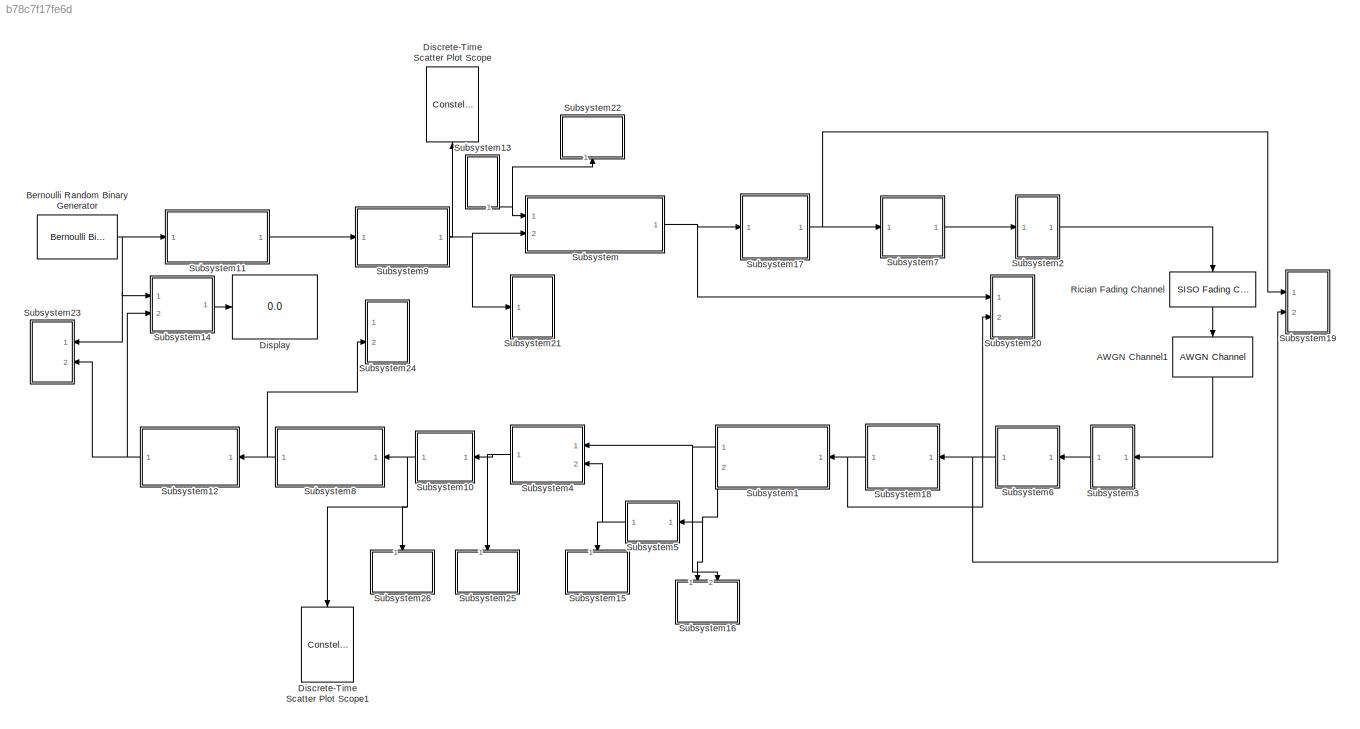
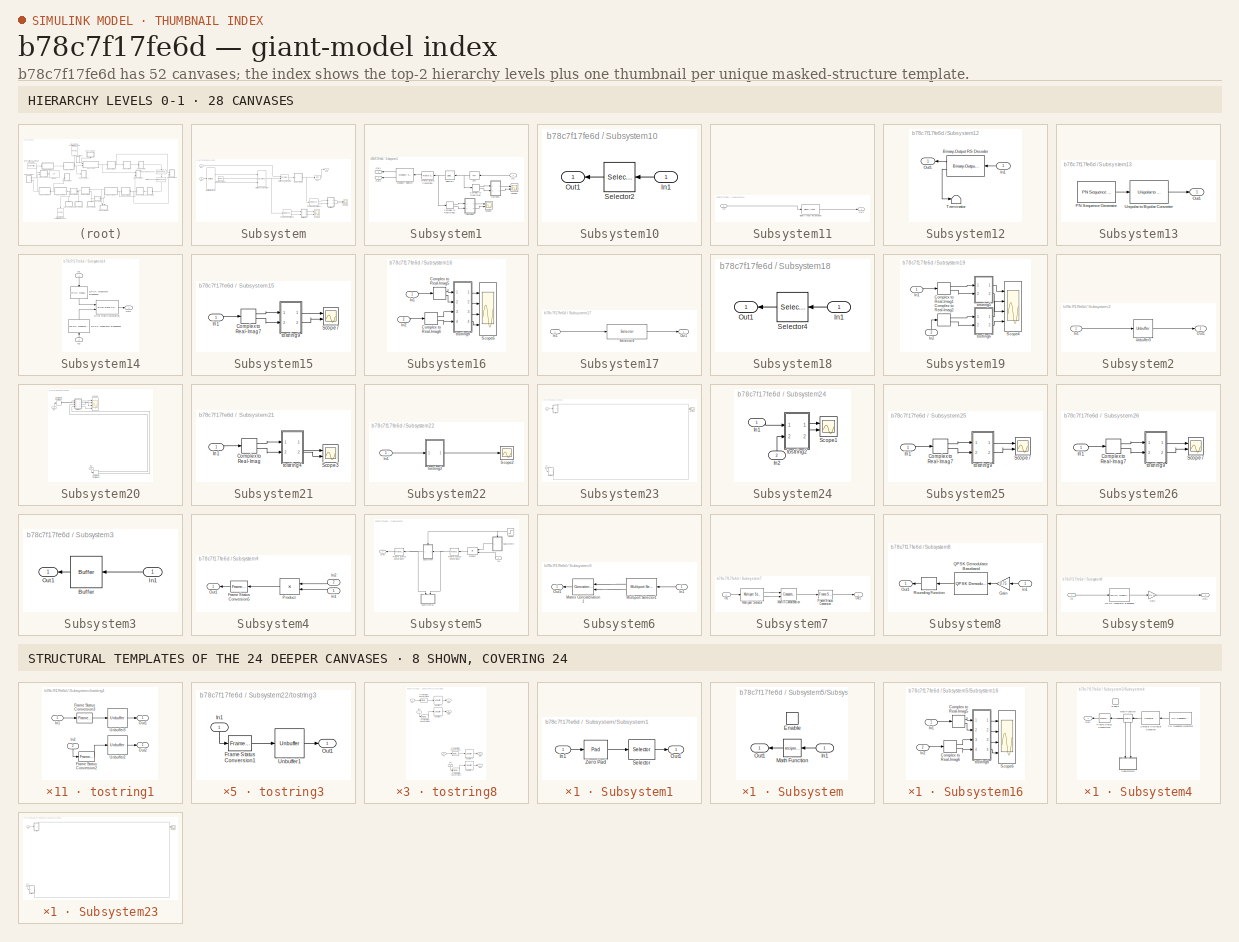
[diagram: thumbnail index - top-2 hierarchy levels (28 canvases) + 8 structural-template representatives of the remaining 24 canvases]
MODEL slx_b78c7f17fe6d
KIND model
CONFIG AbsTol = auto
CONFIG EnableMultiTasking = on
CONFIG FixedStep = auto
CONFIG MaxStep = auto
CONFIG MinStep = auto
CONFIG RelTol = 1e-3
CONFIG SampleTimeConstraint = Unconstrained
CONFIG Solver = ode45
CONFIG SolverName = ode45
CONFIG StartTime = 0.0
CONFIG StopTime = 0.08
BLOCK [Reference] AWGN Channel1  REF=commchan3/AWGN
Channel
  Ports = [1, 1]
  SourceBlock = commchan3/AWGN\nChannel
  SourceProductBaseCode = CM
  SourceProductName = Communications Toolbox
  SourceType = AWGN Channel
  UserDataPersistent = on
BLOCK [Reference] Bernoulli Random Binary Generator  REF=commrandsrc2/Bernoulli Binary
Generator
  Ports = [0, 1]
  SourceBlock = commrandsrc2/Bernoulli Binary\nGenerator
  SourceProductBaseCode = CM
  SourceProductName = Communications Toolbox
  SourceType = Bernoulli Binary Generator
BLOCK [ConstellationDiagram] Discrete-Time Scatter Plot Scope
  Ports = [1]
  ScopeSpecificationString = comm.scopes.ConstellationDiagramBlockCfg('CurrentConfiguration', extmgr.ConfigurationSet(extmgr.Configuration('Core','General UI',true),extmgr.Configuration('Core','Source UI',true),extmgr.Configuration('Sources','WiredSimulink',true),extmgr.Configuration('Visuals','Constellation',true,'MinYLim','-3.3','MaxYLim','3.315','MinXLim','-3.3','MaxXLim','3.315','AxesProperties',struct('Color',[0 0 0],'XC...<+915ch>
  Tag = ScatterPlot
BLOCK [ConstellationDiagram] Discrete-Time Scatter Plot Scope1
  Ports = [1]
  ScopeSpecificationString = comm.scopes.ConstellationDiagramBlockCfg('CurrentConfiguration', extmgr.ConfigurationSet(extmgr.Configuration('Core','General UI',true),extmgr.Configuration('Core','Source UI',true),extmgr.Configuration('Sources','WiredSimulink',true),extmgr.Configuration('Visuals','Constellation',true,'MinYLim','-3.3','MaxYLim','3.315','MinXLim','-3.3','MaxXLim','3.315','AxesProperties',struct('Color',[0 0 0],'XC...<+915ch>
  Tag = ScatterPlot
BLOCK [Display] Display
  Decimation = 1
  Ports = [1]
BLOCK [Reference] Rician Fading Channel  REF=commchan3/SISO Fading Channel
  Ports = [1, 1]
  SourceBlock = commchan3/SISO Fading Channel
  SourceProductBaseCode = CM
  SourceProductName = Communications Toolbox
  SourceType = SISO Fading Channel
BLOCK [SubSystem] Subsystem
  Ports = [2, 1]
  RequestExecContextInheritance = off
BLOCK [ComplexToRealImag] Subsystem/Complex to Real-Imag1
  Ports = [1, 2]
BLOCK [ComplexToRealImag] Subsystem/Complex to Real-Imag2
  Ports = [1, 2]
BLOCK [Reference] Subsystem/DSP Constant  REF=dspobslib/DSP
Constant
  Ports = [0, 1]
  SourceBlock = dspobslib/DSP\nConstant
  SourceProductBaseCode = DS
  SourceProductName = DSP System Toolbox
  SourceType = DSP Constant
BLOCK [Reference] Subsystem/IFFT  REF=dspxfrm3/IFFT
  Ports = [1, 1]
  SourceBlock = dspxfrm3/IFFT
  SourceProductBaseCode = DS
  SourceProductName = DSP System Toolbox
  SourceType = IFFT
BLOCK [Inport] Subsystem/In1
  IconDisplay = Port number
BLOCK [Inport] Subsystem/In2
  IconDisplay = Port number
  Port = 2
BLOCK [Concatenate] Subsystem/Matrix Concatenation
  Mode = Multidimensional array
  NumInputs = 3
  Ports = [3, 1]
BLOCK [Concatenate] Subsystem/Matrix Concatenation1
  ConcatenateDimension = 2
  Mode = Multidimensional array
  Ports = [2, 1]
BLOCK [Reference] Subsystem/Multiport Selector  REF=dspindex/Multiport
Selector
  Ports = [1, 2]
  SourceBlock = dspindex/Multiport\nSelector
  SourceProductBaseCode = DS
  SourceProductName = DSP System Toolbox
  SourceType = Multiport Selector
BLOCK [Outport] Subsystem/Out1
  IconDisplay = Port number
BLOCK [Scope] Subsystem/Scope1
  Floating = off
  NumInputPorts = 2
  Ports = [2]
  ScopeSpecificationString = Simulink.scopes.TimeScopeBlockCfg('CurrentConfiguration', extmgr.ConfigurationSet(extmgr.Configuration('Core','General UI',true),extmgr.Configuration('Core','Source UI',true),extmgr.Configuration('Sources','WiredSimulink',true,'DataLoggingVariableName','ScopeData5','DataLoggingSaveFormat','StructureWithTime','DataLoggingLimitDataPoints',true,'DataLoggingDecimation','1','DataLoggingDecimateData',tr...<+2335ch>
BLOCK [Scope] Subsystem/Scope2
  Floating = off
  NumInputPorts = 2
  Ports = [2]
  ScopeSpecificationString = Simulink.scopes.TimeScopeBlockCfg('CurrentConfiguration', extmgr.ConfigurationSet(extmgr.Configuration('Core','General UI',true),extmgr.Configuration('Core','Source UI',true),extmgr.Configuration('Sources','WiredSimulink',true,'DataLoggingVariableName','ScopeData6','DataLoggingSaveFormat','StructureWithTime','DataLoggingLimitDataPoints',true,'DataLoggingDecimation','1','DataLoggingDecimateData',tr...<+2375ch>
BLOCK [SubSystem] Subsystem/Subsystem1
  Ports = [1, 1]
  RequestExecContextInheritance = off
BLOCK [Inport] Subsystem/Subsystem1/In1
  IconDisplay = Port number
BLOCK [Outport] Subsystem/Subsystem1/Out1
  IconDisplay = Port number
BLOCK [Selector] Subsystem/Subsystem1/Selector
  IndexOptions = Index vector (dialog),Select all
  Indices = [16:64,1:15],-1
  InputPortWidth = 64
  NumberOfDimensions = 2
  OutputSizes = 1
  Ports = [1, 1]
BLOCK [Reference] Subsystem/Subsystem1/Zero Pad  REF=dspsigops/Pad
  Ports = [1, 1]
  SourceBlock = dspsigops/Pad
  SourceProductBaseCode = DS
  SourceProductName = DSP System Toolbox
  SourceType = Pad
BLOCK [SubSystem] Subsystem/tostring1
  Ports = [2, 2]
  RequestExecContextInheritance = off
BLOCK [Reference] Subsystem/tostring1/Frame Status Conversion2  REF=dspobslib/Frame Status
Conversion
  Ports = [1, 1]
  SourceBlock = dspobslib/Frame Status\nConversion
  SourceProductBaseCode = DS
  SourceProductName = DSP System Toolbox
  SourceType = Frame Status Conversion
BLOCK [Reference] Subsystem/tostring1/Frame Status Conversion3  REF=dspobslib/Frame Status
Conversion
  Ports = [1, 1]
  SourceBlock = dspobslib/Frame Status\nConversion
  SourceProductBaseCode = DS
  SourceProductName = DSP System Toolbox
  SourceType = Frame Status Conversion
BLOCK [Inport] Subsystem/tostring1/In1
  IconDisplay = Port number
BLOCK [Inport] Subsystem/tostring1/In2
  IconDisplay = Port number
  Port = 2
BLOCK [Outport] Subsystem/tostring1/Out1
  IconDisplay = Port number
BLOCK [Outport] Subsystem/tostring1/Out2
  IconDisplay = Port number
  Port = 2
BLOCK [Unbuffer] Subsystem/tostring1/Unbuffer2
  Ports = [1, 1]
BLOCK [Unbuffer] Subsystem/tostring1/Unbuffer3
  Ports = [1, 1]
BLOCK [SubSystem] Subsystem/tostring2
  Ports = [2, 2]
  RequestExecContextInheritance = off
BLOCK [Reference] Subsystem/tostring2/Frame Status Conversion2  REF=dspobslib/Frame Status
Conversion
  Ports = [1, 1]
  SourceBlock = dspobslib/Frame Status\nConversion
  SourceProductBaseCode = DS
  SourceProductName = DSP System Toolbox
  SourceType = Frame Status Conversion
BLOCK [Reference] Subsystem/tostring2/Frame Status Conversion3  REF=dspobslib/Frame Status
Conversion
  Ports = [1, 1]
  SourceBlock = dspobslib/Frame Status\nConversion
  SourceProductBaseCode = DS
  SourceProductName = DSP System Toolbox
  SourceType = Frame Status Conversion
BLOCK [Inport] Subsystem/tostring2/In1
  IconDisplay = Port number
BLOCK [Inport] Subsystem/tostring2/In2
  IconDisplay = Port number
  Port = 2
BLOCK [Outport] Subsystem/tostring2/Out1
  IconDisplay = Port number
BLOCK [Outport] Subsystem/tostring2/Out2
  IconDisplay = Port number
  Port = 2
BLOCK [Unbuffer] Subsystem/tostring2/Unbuffer2
  Ports = [1, 1]
BLOCK [Unbuffer] Subsystem/tostring2/Unbuffer3
  Ports = [1, 1]
BLOCK [SubSystem] Subsystem1
  Ports = [1, 2]
  RequestExecContextInheritance = off
BLOCK [ComplexToRealImag] Subsystem1/Complex to Real-Imag
  Ports = [1, 2]
BLOCK [ComplexToRealImag] Subsystem1/Complex to Real-Imag1
  Ports = [1, 2]
BLOCK [Reference] Subsystem1/FFT  REF=dspxfrm3/FFT
  Ports = [1, 1]
  SourceBlock = dspxfrm3/FFT
  SourceProductBaseCode = DS
  SourceProductName = DSP System Toolbox
  SourceType = FFT
BLOCK [Reference] Subsystem1/Frame Status Conversion  REF=dspobslib/Frame Status
Conversion
  Ports = [1, 1]
  SourceBlock = dspobslib/Frame Status\nConversion
  SourceProductBaseCode = DS
  SourceProductName = DSP System Toolbox
  SourceType = Frame Status Conversion
BLOCK [Inport] Subsystem1/In1
  IconDisplay = Port number
BLOCK [Reference] Subsystem1/Multiport Selector  REF=dspindex/Multiport
Selector
  Ports = [1, 2]
  SourceBlock = dspindex/Multiport\nSelector
  SourceProductBaseCode = DS
  SourceProductName = DSP System Toolbox
  SourceType = Multiport Selector
BLOCK [Outport] Subsystem1/Out1
  IconDisplay = Port number
BLOCK [Outport] Subsystem1/Out2
  IconDisplay = Port number
  Port = 2
BLOCK [Scope] Subsystem1/Scope1
  Floating = off
  NumInputPorts = 2
  Ports = [2]
  ScopeSpecificationString = C++SS(StrPVP('Location','[5, 48, 1445, 859]'),StrPVP('Open','off'),MxPVP('AxesTitles',54,'struct(''axes1'',''%<SignalLabel>'',''axes2'',''%<SignalLabel>'')'),StrPVP('YMin','-5~-5'),StrPVP('YMax','5~5'),StrPVP('SaveName','ScopeData9'),StrPVP('DataFormat','StructureWithTime'),StrPVP('BlockParamSampleTime','0'),StrPVP('LimitDataPoints','on'),StrPVP('Decimation','1'),StrPVP('BlockParamSampleInput','of...<+4ch>
BLOCK [Scope] Subsystem1/Scope3
  Floating = off
  NumInputPorts = 2
  Ports = [2]
  ScopeSpecificationString = Simulink.scopes.TimeScopeBlockCfg('CurrentConfiguration', extmgr.ConfigurationSet(extmgr.Configuration('Core','General UI',true),extmgr.Configuration('Core','Source UI',true),extmgr.Configuration('Sources','WiredSimulink',true,'DataLoggingVariableName','ScopeData8','DataLoggingSaveFormat','StructureWithTime','DataLoggingLimitDataPoints',true,'DataLoggingDecimation','1','DataLoggingDecimateData',tr...<+2415ch>
BLOCK [Selector] Subsystem1/Selector1
  IndexOptions = Index vector (dialog),Select all
  Indices = [50:64,1:16],-1
  InputPortWidth = 64
  NumberOfDimensions = 2
  OutputSizes = 1
  Ports = [1, 1]
BLOCK [SubSystem] Subsystem1/tostring1
  Ports = [2, 2]
  RequestExecContextInheritance = off
BLOCK [Reference] Subsystem1/tostring1/Frame Status Conversion2  REF=dspobslib/Frame Status
Conversion
  Ports = [1, 1]
  SourceBlock = dspobslib/Frame Status\nConversion
  SourceProductBaseCode = DS
  SourceProductName = DSP System Toolbox
  SourceType = Frame Status Conversion
BLOCK [Reference] Subsystem1/tostring1/Frame Status Conversion3  REF=dspobslib/Frame Status
Conversion
  Ports = [1, 1]
  SourceBlock = dspobslib/Frame Status\nConversion
  SourceProductBaseCode = DS
  SourceProductName = DSP System Toolbox
  SourceType = Frame Status Conversion
BLOCK [Inport] Subsystem1/tostring1/In1
  IconDisplay = Port number
BLOCK [Inport] Subsystem1/tostring1/In2
  IconDisplay = Port number
  Port = 2
BLOCK [Outport] Subsystem1/tostring1/Out1
  IconDisplay = Port number
BLOCK [Outport] Subsystem1/tostring1/Out2
  IconDisplay = Port number
  Port = 2
BLOCK [Unbuffer] Subsystem1/tostring1/Unbuffer2
  Ports = [1, 1]
BLOCK [Unbuffer] Subsystem1/tostring1/Unbuffer3
  Ports = [1, 1]
BLOCK [SubSystem] Subsystem1/tostring4
  Ports = [2, 2]
  RequestExecContextInheritance = off
BLOCK [Reference] Subsystem1/tostring4/Frame Status Conversion2  REF=dspobslib/Frame Status
Conversion
  Ports = [1, 1]
  SourceBlock = dspobslib/Frame Status\nConversion
  SourceProductBaseCode = DS
  SourceProductName = DSP System Toolbox
  SourceType = Frame Status Conversion
BLOCK [Reference] Subsystem1/tostring4/Frame Status Conversion3  REF=dspobslib/Frame Status
Conversion
  Ports = [1, 1]
  SourceBlock = dspobslib/Frame Status\nConversion
  SourceProductBaseCode = DS
  SourceProductName = DSP System Toolbox
  SourceType = Frame Status Conversion
BLOCK [Inport] Subsystem1/tostring4/In1
  IconDisplay = Port number
BLOCK [Inport] Subsystem1/tostring4/In2
  IconDisplay = Port number
  Port = 2
BLOCK [Outport] Subsystem1/tostring4/Out1
  IconDisplay = Port number
BLOCK [Outport] Subsystem1/tostring4/Out2
  IconDisplay = Port number
  Port = 2
BLOCK [Unbuffer] Subsystem1/tostring4/Unbuffer2
  Ports = [1, 1]
BLOCK [Unbuffer] Subsystem1/tostring4/Unbuffer3
  Ports = [1, 1]
BLOCK [SubSystem] Subsystem10
  Ports = [1, 1]
  RequestExecContextInheritance = off
BLOCK [Inport] Subsystem10/In1
  IconDisplay = Port number
BLOCK [Outport] Subsystem10/Out1
  IconDisplay = Port number
BLOCK [Selector] Subsystem10/Selector2
  IndexOptions = Index vector (dialog),Select all
  Indices = [1:15,17:31],-1
  InputPortWidth = 31
  NumberOfDimensions = 2
  OutputSizes = 1
  Ports = [1, 1]
BLOCK [SubSystem] Subsystem11
  Ports = [1, 1]
  RequestExecContextInheritance = off
BLOCK [Reference] Subsystem11/Binary-Input RS Encoder  REF=commblkcod2/Binary-Input
RS Encoder
  Ports = [1, 1]
  SourceBlock = commblkcod2/Binary-Input\nRS Encoder
  SourceProductBaseCode = CM
  SourceProductName = Communications Toolbox
  SourceType = Binary-Input RS Encoder
BLOCK [Inport] Subsystem11/In1
  IconDisplay = Port number
BLOCK [Outport] Subsystem11/Out1
  IconDisplay = Port number
BLOCK [SubSystem] Subsystem12
  Ports = [1, 1]
  RequestExecContextInheritance = off
BLOCK [Reference] Subsystem12/Binary-Output RS Decoder  REF=commblkcod2/Binary-Output
RS Decoder
  Ports = [1, 2]
  SourceBlock = commblkcod2/Binary-Output\nRS Decoder
  SourceProductBaseCode = CM
  SourceProductName = Communications Toolbox
  SourceType = Binary-Output RS Decoder
BLOCK [Inport] Subsystem12/In1
  IconDisplay = Port number
BLOCK [Outport] Subsystem12/Out1
  IconDisplay = Port number
BLOCK [Terminator] Subsystem12/Terminator
BLOCK [SubSystem] Subsystem13
  Ports = [0, 1]
  RequestExecContextInheritance = off
BLOCK [Outport] Subsystem13/Out1
  IconDisplay = Port number
BLOCK [Reference] Subsystem13/PN Sequence Generator  REF=commseqgen2/PN Sequence
Generator
  Ports = [0, 1]
  SourceBlock = commseqgen2/PN Sequence\nGenerator
  SourceProductBaseCode = CM
  SourceProductName = Communications Toolbox
  SourceType = PN Sequence Generator
BLOCK [Reference] Subsystem13/Unipolar to Bipolar Converter  REF=commutil2/Unipolar to
Bipolar
Converter
  Ports = [1, 1]
  SourceBlock = commutil2/Unipolar to\nBipolar\nConverter
  SourceProductBaseCode = CM
  SourceProductName = Communications Toolbox
  SourceType = Unipolar to Bipolar Converter
BLOCK [SubSystem] Subsystem14
  Ports = [2, 1]
  RequestExecContextInheritance = off
BLOCK [Reference] Subsystem14/Error Rate Calculation  REF=commsink2/Error Rate
Calculation
  Ports = [2, 1]
  SourceBlock = commsink2/Error Rate\nCalculation
  SourceProductBaseCode = CM
  SourceProductName = Communications Toolbox
  SourceType = Error Rate Calculation
BLOCK [Inport] Subsystem14/In1
  IconDisplay = Port number
BLOCK [Inport] Subsystem14/In2
  IconDisplay = Port number
  Port = 2
BLOCK [Outport] Subsystem14/Out1
  IconDisplay = Port number
BLOCK [Reference] Subsystem14/QPSK Modulator Baseband  REF=commdigbbndpm3/QPSK
Modulator
Baseband
  Ports = [1, 1]
  SourceBlock = commdigbbndpm3/QPSK\nModulator\nBaseband
  SourceProductBaseCode = CM
  SourceProductName = Communications Toolbox
  SourceType = QPSK Modulator Baseband
BLOCK [Reference] Subsystem14/QPSK Modulator Baseband1  REF=commdigbbndpm3/QPSK
Modulator
Baseband
  Ports = [1, 1]
  SourceBlock = commdigbbndpm3/QPSK\nModulator\nBaseband
  SourceProductBaseCode = CM
  SourceProductName = Communications Toolbox
  SourceType = QPSK Modulator Baseband
BLOCK [SubSystem] Subsystem15
  Ports = [1]
  RequestExecContextInheritance = off
BLOCK [ComplexToRealImag] Subsystem15/Complex to Real-Imag7
  Ports = [1, 2]
BLOCK [Inport] Subsystem15/In1
  IconDisplay = Port number
BLOCK [Scope] Subsystem15/Scope7
  Floating = off
  NumInputPorts = 2
  Ports = [2]
  ScopeSpecificationString = C++SS(StrPVP('Location','[5, 48, 1445, 859]'),StrPVP('Open','off'),MxPVP('AxesTitles',54,'struct(''axes1'',''%<SignalLabel>'',''axes2'',''%<SignalLabel>'')'),StrPVP('YMin','-5~-5'),StrPVP('YMax','5~5'),StrPVP('SaveName','ScopeData11'),StrPVP('DataFormat','StructureWithTime'),StrPVP('BlockParamSampleTime','0'),StrPVP('LimitDataPoints','on'),StrPVP('Decimation','1'),StrPVP('BlockParamSampleInput','o...<+5ch>  <repeated x3 — deduplicated; at blocks: Scope7>
BLOCK [SubSystem] Subsystem15/tostring9
  Ports = [2, 2]
  RequestExecContextInheritance = off
BLOCK [Reference] Subsystem15/tostring9/Frame Status Conversion2  REF=dspobslib/Frame Status
Conversion
  Ports = [1, 1]
  SourceBlock = dspobslib/Frame Status\nConversion
  SourceProductBaseCode = DS
  SourceProductName = DSP System Toolbox
  SourceType = Frame Status Conversion
BLOCK [Reference] Subsystem15/tostring9/Frame Status Conversion3  REF=dspobslib/Frame Status
Conversion
  Ports = [1, 1]
  SourceBlock = dspobslib/Frame Status\nConversion
  SourceProductBaseCode = DS
  SourceProductName = DSP System Toolbox
  SourceType = Frame Status Conversion
BLOCK [Inport] Subsystem15/tostring9/In1
  IconDisplay = Port number
BLOCK [Inport] Subsystem15/tostring9/In2
  IconDisplay = Port number
  Port = 2
BLOCK [Outport] Subsystem15/tostring9/Out1
  IconDisplay = Port number
BLOCK [Outport] Subsystem15/tostring9/Out2
  IconDisplay = Port number
  Port = 2
BLOCK [Unbuffer] Subsystem15/tostring9/Unbuffer2
  Ports = [1, 1]
BLOCK [Unbuffer] Subsystem15/tostring9/Unbuffer3
  Ports = [1, 1]
BLOCK [SubSystem] Subsystem16
  Ports = [2]
  RequestExecContextInheritance = off
BLOCK [ComplexToRealImag] Subsystem16/Complex to Real-Imag5
  Ports = [1, 2]
BLOCK [ComplexToRealImag] Subsystem16/Complex to Real-Imag6
  Ports = [1, 2]
BLOCK [Inport] Subsystem16/In1
  IconDisplay = Port number
BLOCK [Inport] Subsystem16/In2
  IconDisplay = Port number
  Port = 2
BLOCK [Scope] Subsystem16/Scope6
  Floating = off
  NumInputPorts = 4
  Ports = [4]
  ScopeSpecificationString = C++SS(StrPVP('Location','[5, 48, 1445, 859]'),StrPVP('Open','off'),MxPVP('AxesTitles',54,'struct(''axes1'',''%<SignalLabel>'',''axes2'',''%<SignalLabel>'',''axes3'',''%<SignalLabel>'',''axes4'',''%<SignalLabel>'')'),StrPVP('YMin','-5~-5~-5~-5'),StrPVP('YMax','5~5~5~5'),StrPVP('SaveName','ScopeData10'),StrPVP('DataFormat','StructureWithTime'),StrPVP('BlockParamSampleTime','0'),StrPVP('LimitDataPoin...<+73ch>
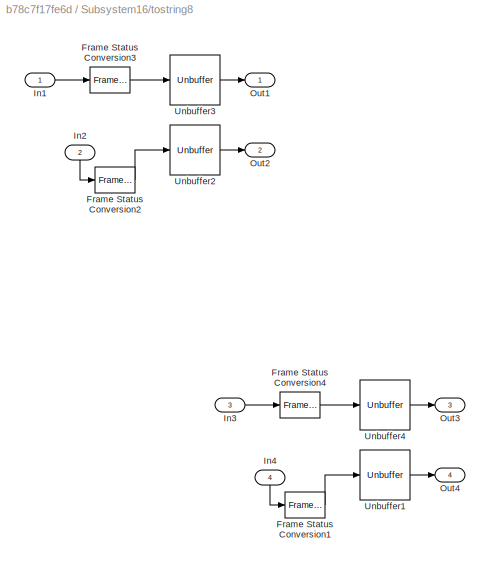
BLOCK [SubSystem] Subsystem16/tostring8
  Ports = [4, 4]
  RequestExecContextInheritance = off
BLOCK [Reference] Subsystem16/tostring8/Frame Status Conversion1  REF=dspobslib/Frame Status
Conversion
  Ports = [1, 1]
  SourceBlock = dspobslib/Frame Status\nConversion
  SourceProductBaseCode = DS
  SourceProductName = DSP System Toolbox
  SourceType = Frame Status Conversion
BLOCK [Reference] Subsystem16/tostring8/Frame Status Conversion2  REF=dspobslib/Frame Status
Conversion
  Ports = [1, 1]
  SourceBlock = dspobslib/Frame Status\nConversion
  SourceProductBaseCode = DS
  SourceProductName = DSP System Toolbox
  SourceType = Frame Status Conversion
BLOCK [Reference] Subsystem16/tostring8/Frame Status Conversion3  REF=dspobslib/Frame Status
Conversion
  Ports = [1, 1]
  SourceBlock = dspobslib/Frame Status\nConversion
  SourceProductBaseCode = DS
  SourceProductName = DSP System Toolbox
  SourceType = Frame Status Conversion
BLOCK [Reference] Subsystem16/tostring8/Frame Status Conversion4  REF=dspobslib/Frame Status
Conversion
  Ports = [1, 1]
  SourceBlock = dspobslib/Frame Status\nConversion
  SourceProductBaseCode = DS
  SourceProductName = DSP System Toolbox
  SourceType = Frame Status Conversion
BLOCK [Inport] Subsystem16/tostring8/In1
  IconDisplay = Port number
BLOCK [Inport] Subsystem16/tostring8/In2
  IconDisplay = Port number
  Port = 2
BLOCK [Inport] Subsystem16/tostring8/In3
  IconDisplay = Port number
  Port = 3
BLOCK [Inport] Subsystem16/tostring8/In4
  IconDisplay = Port number
  Port = 4
BLOCK [Outport] Subsystem16/tostring8/Out1
  IconDisplay = Port number
BLOCK [Outport] Subsystem16/tostring8/Out2
  IconDisplay = Port number
  Port = 2
BLOCK [Outport] Subsystem16/tostring8/Out3
  IconDisplay = Port number
  Port = 3
BLOCK [Outport] Subsystem16/tostring8/Out4
  IconDisplay = Port number
  Port = 4
BLOCK [Unbuffer] Subsystem16/tostring8/Unbuffer1
  Ports = [1, 1]
BLOCK [Unbuffer] Subsystem16/tostring8/Unbuffer2
  Ports = [1, 1]
BLOCK [Unbuffer] Subsystem16/tostring8/Unbuffer3
  Ports = [1, 1]
BLOCK [Unbuffer] Subsystem16/tostring8/Unbuffer4
  Ports = [1, 1]
BLOCK [SubSystem] Subsystem17
  Ports = [1, 1]
  RequestExecContextInheritance = off
BLOCK [Inport] Subsystem17/In1
  IconDisplay = Port number
BLOCK [Outport] Subsystem17/Out1
  IconDisplay = Port number
BLOCK [Selector] Subsystem17/Selector3
  IndexOptions = Index vector (dialog),Select all
  Indices = [39:64,1:64],-1
  InputPortWidth = 64
  NumberOfDimensions = 2
  OutputSizes = 1
  Ports = [1, 1]
BLOCK [SubSystem] Subsystem18
  Ports = [1, 1]
  RequestExecContextInheritance = off
BLOCK [Inport] Subsystem18/In1
  IconDisplay = Port number
BLOCK [Outport] Subsystem18/Out1
  IconDisplay = Port number
BLOCK [Selector] Subsystem18/Selector4
  IndexOptions = Index vector (dialog),Select all
  Indices = [27:90],-1
  InputPortWidth = 78
  NumberOfDimensions = 2
  OutputSizes = 1
  Ports = [1, 1]
BLOCK [SubSystem] Subsystem19
  Ports = [2]
  RequestExecContextInheritance = off
BLOCK [ComplexToRealImag] Subsystem19/Complex to Real-Imag1
  Ports = [1, 2]
BLOCK [ComplexToRealImag] Subsystem19/Complex to Real-Imag2
  Ports = [1, 2]
BLOCK [Inport] Subsystem19/In1
  IconDisplay = Port number
BLOCK [Inport] Subsystem19/In2
  IconDisplay = Port number
  Port = 2
BLOCK [Scope] Subsystem19/Scope4
  Floating = off
  NumInputPorts = 4
  Ports = [4]
  ScopeSpecificationString = C++SS(StrPVP('Location','[5, 48, 1445, 859]'),StrPVP('Open','off'),MxPVP('AxesTitles',54,'struct(''axes1'',''%<SignalLabel>'',''axes2'',''%<SignalLabel>'',''axes3'',''%<SignalLabel>'',''axes4'',''%<SignalLabel>'')'),StrPVP('YMin','-5~-5~-5~-5'),StrPVP('YMax','5~5~5~5'),StrPVP('SaveName','ScopeData7'),StrPVP('DataFormat','StructureWithTime'),StrPVP('BlockParamSampleTime','0'),StrPVP('LimitDataPoint...<+72ch>
BLOCK [SubSystem] Subsystem19/tostring5
  Ports = [2, 2]
  RequestExecContextInheritance = off
BLOCK [Reference] Subsystem19/tostring5/Frame Status Conversion2  REF=dspobslib/Frame Status
Conversion
  Ports = [1, 1]
  SourceBlock = dspobslib/Frame Status\nConversion
  SourceProductBaseCode = DS
  SourceProductName = DSP System Toolbox
  SourceType = Frame Status Conversion
BLOCK [Reference] Subsystem19/tostring5/Frame Status Conversion3  REF=dspobslib/Frame Status
Conversion
  Ports = [1, 1]
  SourceBlock = dspobslib/Frame Status\nConversion
  SourceProductBaseCode = DS
  SourceProductName = DSP System Toolbox
  SourceType = Frame Status Conversion
BLOCK [Inport] Subsystem19/tostring5/In1
  IconDisplay = Port number
BLOCK [Inport] Subsystem19/tostring5/In2
  IconDisplay = Port number
  Port = 2
BLOCK [Outport] Subsystem19/tostring5/Out1
  IconDisplay = Port number
BLOCK [Outport] Subsystem19/tostring5/Out2
  IconDisplay = Port number
  Port = 2
BLOCK [Unbuffer] Subsystem19/tostring5/Unbuffer2
  Ports = [1, 1]
BLOCK [Unbuffer] Subsystem19/tostring5/Unbuffer3
  Ports = [1, 1]
BLOCK [SubSystem] Subsystem19/tostring6
  Ports = [2, 2]
  RequestExecContextInheritance = off
BLOCK [Reference] Subsystem19/tostring6/Frame Status Conversion2  REF=dspobslib/Frame Status
Conversion
  Ports = [1, 1]
  SourceBlock = dspobslib/Frame Status\nConversion
  SourceProductBaseCode = DS
  SourceProductName = DSP System Toolbox
  SourceType = Frame Status Conversion
BLOCK [Reference] Subsystem19/tostring6/Frame Status Conversion3  REF=dspobslib/Frame Status
Conversion
  Ports = [1, 1]
  SourceBlock = dspobslib/Frame Status\nConversion
  SourceProductBaseCode = DS
  SourceProductName = DSP System Toolbox
  SourceType = Frame Status Conversion
BLOCK [Inport] Subsystem19/tostring6/In1
  IconDisplay = Port number
BLOCK [Inport] Subsystem19/tostring6/In2
  IconDisplay = Port number
  Port = 2
BLOCK [Outport] Subsystem19/tostring6/Out1
  IconDisplay = Port number
BLOCK [Outport] Subsystem19/tostring6/Out2
  IconDisplay = Port number
  Port = 2
BLOCK [Unbuffer] Subsystem19/tostring6/Unbuffer2
  Ports = [1, 1]
BLOCK [Unbuffer] Subsystem19/tostring6/Unbuffer3
  Ports = [1, 1]
BLOCK [SubSystem] Subsystem2
  Ports = [1, 1]
  RequestExecContextInheritance = off
BLOCK [Inport] Subsystem2/In1
  IconDisplay = Port number
BLOCK [Outport] Subsystem2/Out1
  IconDisplay = Port number
BLOCK [Unbuffer] Subsystem2/Unbuffer3
  Ports = [1, 1]
BLOCK [SubSystem] Subsystem20
  Ports = [2]
  RequestExecContextInheritance = off
BLOCK [ComplexToRealImag] Subsystem20/Complex to Real-Imag3
  Ports = [1, 2]
BLOCK [ComplexToRealImag] Subsystem20/Complex to Real-Imag4
  Ports = [1, 2]
BLOCK [Inport] Subsystem20/In1
  IconDisplay = Port number
BLOCK [Inport] Subsystem20/In2
  IconDisplay = Port number
  Port = 2
BLOCK [Scope] Subsystem20/Scope5
  Floating = off
  NumInputPorts = 4
  Ports = [4]
  ScopeSpecificationString = C++SS(StrPVP('Location','[5, 48, 1445, 859]'),StrPVP('Open','off'),MxPVP('AxesTitles',54,'struct(''axes1'',''%<SignalLabel>'',''axes2'',''%<SignalLabel>'',''axes3'',''%<SignalLabel>'',''axes4'',''%<SignalLabel>'')'),StrPVP('YMin','-5~-5~-5~-5'),StrPVP('YMax','5~5~5~5'),StrPVP('SaveName','ScopeData4'),StrPVP('DataFormat','StructureWithTime'),StrPVP('BlockParamSampleTime','0'),StrPVP('LimitDataPoint...<+72ch>
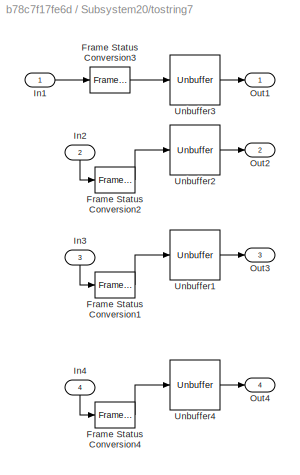
BLOCK [SubSystem] Subsystem20/tostring7
  Ports = [4, 4]
  RequestExecContextInheritance = off
BLOCK [Reference] Subsystem20/tostring7/Frame Status Conversion1  REF=dspobslib/Frame Status
Conversion
  Ports = [1, 1]
  SourceBlock = dspobslib/Frame Status\nConversion
  SourceProductBaseCode = DS
  SourceProductName = DSP System Toolbox
  SourceType = Frame Status Conversion
BLOCK [Reference] Subsystem20/tostring7/Frame Status Conversion2  REF=dspobslib/Frame Status
Conversion
  Ports = [1, 1]
  SourceBlock = dspobslib/Frame Status\nConversion
  SourceProductBaseCode = DS
  SourceProductName = DSP System Toolbox
  SourceType = Frame Status Conversion
BLOCK [Reference] Subsystem20/tostring7/Frame Status Conversion3  REF=dspobslib/Frame Status
Conversion
  Ports = [1, 1]
  SourceBlock = dspobslib/Frame Status\nConversion
  SourceProductBaseCode = DS
  SourceProductName = DSP System Toolbox
  SourceType = Frame Status Conversion
BLOCK [Reference] Subsystem20/tostring7/Frame Status Conversion4  REF=dspobslib/Frame Status
Conversion
  Ports = [1, 1]
  SourceBlock = dspobslib/Frame Status\nConversion
  SourceProductBaseCode = DS
  SourceProductName = DSP System Toolbox
  SourceType = Frame Status Conversion
BLOCK [Inport] Subsystem20/tostring7/In1
  IconDisplay = Port number
BLOCK [Inport] Subsystem20/tostring7/In2
  IconDisplay = Port number
  Port = 2
BLOCK [Inport] Subsystem20/tostring7/In3
  IconDisplay = Port number
  Port = 3
BLOCK [Inport] Subsystem20/tostring7/In4
  IconDisplay = Port number
  Port = 4
BLOCK [Outport] Subsystem20/tostring7/Out1
  IconDisplay = Port number
BLOCK [Outport] Subsystem20/tostring7/Out2
  IconDisplay = Port number
  Port = 2
BLOCK [Outport] Subsystem20/tostring7/Out3
  IconDisplay = Port number
  Port = 3
BLOCK [Outport] Subsystem20/tostring7/Out4
  IconDisplay = Port number
  Port = 4
BLOCK [Unbuffer] Subsystem20/tostring7/Unbuffer1
  Ports = [1, 1]
BLOCK [Unbuffer] Subsystem20/tostring7/Unbuffer2
  Ports = [1, 1]
BLOCK [Unbuffer] Subsystem20/tostring7/Unbuffer3
  Ports = [1, 1]
BLOCK [Unbuffer] Subsystem20/tostring7/Unbuffer4
  Ports = [1, 1]
BLOCK [SubSystem] Subsystem21
  Ports = [1]
  RequestExecContextInheritance = off
BLOCK [ComplexToRealImag] Subsystem21/Complex to Real-Imag
  Ports = [1, 2]
BLOCK [Inport] Subsystem21/In1
  IconDisplay = Port number
BLOCK [Scope] Subsystem21/Scope3
  Floating = off
  NumInputPorts = 2
  Ports = [2]
  ScopeSpecificationString = C++SS(StrPVP('Location','[1, 48, 1441, 859]'),StrPVP('Open','off'),MxPVP('AxesTitles',54,'struct(''axes1'',''%<SignalLabel>'',''axes2'',''%<SignalLabel>'')'),StrPVP('YMin','-5~-5'),StrPVP('YMax','5~5'),StrPVP('SaveName','ScopeData3'),StrPVP('DataFormat','StructureWithTime'),StrPVP('BlockParamSampleTime','0'),StrPVP('LimitDataPoints','on'),StrPVP('Decimation','1'),StrPVP('BlockParamSampleInput','of...<+4ch>
BLOCK [SubSystem] Subsystem21/tostring4
  Ports = [2, 2]
  RequestExecContextInheritance = off
BLOCK [Reference] Subsystem21/tostring4/Frame Status Conversion2  REF=dspobslib/Frame Status
Conversion
  Ports = [1, 1]
  SourceBlock = dspobslib/Frame Status\nConversion
  SourceProductBaseCode = DS
  SourceProductName = DSP System Toolbox
  SourceType = Frame Status Conversion
BLOCK [Reference] Subsystem21/tostring4/Frame Status Conversion3  REF=dspobslib/Frame Status
Conversion
  Ports = [1, 1]
  SourceBlock = dspobslib/Frame Status\nConversion
  SourceProductBaseCode = DS
  SourceProductName = DSP System Toolbox
  SourceType = Frame Status Conversion
BLOCK [Inport] Subsystem21/tostring4/In1
  IconDisplay = Port number
BLOCK [Inport] Subsystem21/tostring4/In2
  IconDisplay = Port number
  Port = 2
BLOCK [Outport] Subsystem21/tostring4/Out1
  IconDisplay = Port number
BLOCK [Outport] Subsystem21/tostring4/Out2
  IconDisplay = Port number
  Port = 2
BLOCK [Unbuffer] Subsystem21/tostring4/Unbuffer2
  Ports = [1, 1]
BLOCK [Unbuffer] Subsystem21/tostring4/Unbuffer3
  Ports = [1, 1]
BLOCK [SubSystem] Subsystem22
  Ports = [1]
  RequestExecContextInheritance = off
BLOCK [Inport] Subsystem22/In1
  IconDisplay = Port number
BLOCK [Scope] Subsystem22/Scope2
  Floating = off
  NumInputPorts = 1
  Ports = [1]
  ScopeSpecificationString = Simulink.scopes.TimeScopeBlockCfg('CurrentConfiguration', extmgr.ConfigurationSet(extmgr.Configuration('Core','General UI',true),extmgr.Configuration('Core','Source UI',true),extmgr.Configuration('Sources','WiredSimulink',true,'DataLoggingVariableName','ScopeData2','DataLoggingSaveFormat','StructureWithTime','DataLoggingLimitDataPoints',true,'DataLoggingDecimation','1','DataLoggingDecimateData',tr...<+909ch>
BLOCK [SubSystem] Subsystem22/tostring3
  Ports = [1, 1]
  RequestExecContextInheritance = off
BLOCK [Reference] Subsystem22/tostring3/Frame Status Conversion1  REF=dspobslib/Frame Status
Conversion
  Ports = [1, 1]
  SourceBlock = dspobslib/Frame Status\nConversion
  SourceProductBaseCode = DS
  SourceProductName = DSP System Toolbox
  SourceType = Frame Status Conversion
BLOCK [Inport] Subsystem22/tostring3/In1
  IconDisplay = Port number
BLOCK [Outport] Subsystem22/tostring3/Out1
  IconDisplay = Port number
BLOCK [Unbuffer] Subsystem22/tostring3/Unbuffer1
  Ports = [1, 1]
BLOCK [SubSystem] Subsystem23
  Ports = [2]
  RequestExecContextInheritance = off
BLOCK [Inport] Subsystem23/In1
  IconDisplay = Port number
BLOCK [Inport] Subsystem23/In2
  IconDisplay = Port number
  Port = 2
BLOCK [Scope] Subsystem23/Scope
  Floating = off
  NumInputPorts = 2
  Ports = [2]
  ScopeSpecificationString = C++SS(StrPVP('Location','[5, 48, 1445, 859]'),StrPVP('Open','off'),MxPVP('AxesTitles',54,'struct(''axes1'',''%<SignalLabel>'',''axes2'',''%<SignalLabel>'')'),StrPVP('YMin','-5~-5'),StrPVP('YMax','5~5'),StrPVP('DataFormat','StructureWithTime'),StrPVP('BlockParamSampleTime','0'),StrPVP('LimitDataPoints','on'),StrPVP('Decimation','1'),StrPVP('BlockParamSampleInput','off'))
BLOCK [SubSystem] Subsystem23/tostring
  Ports = [1, 1]
  RequestExecContextInheritance = off
BLOCK [Reference] Subsystem23/tostring/Frame Status Conversion5  REF=dspobslib/Frame Status
Conversion
  Ports = [1, 1]
  SourceBlock = dspobslib/Frame Status\nConversion
  SourceProductBaseCode = DS
  SourceProductName = DSP System Toolbox
  SourceType = Frame Status Conversion
BLOCK [Inport] Subsystem23/tostring/In1
  IconDisplay = Port number
BLOCK [Outport] Subsystem23/tostring/Out1
  IconDisplay = Port number
BLOCK [Unbuffer] Subsystem23/tostring/Unbuffer
  Ports = [1, 1]
BLOCK [SubSystem] Subsystem23/tostring1
  Ports = [1, 1]
  RequestExecContextInheritance = off
BLOCK [Reference] Subsystem23/tostring1/Frame Status Conversion1  REF=dspobslib/Frame Status
Conversion
  Ports = [1, 1]
  SourceBlock = dspobslib/Frame Status\nConversion
  SourceProductBaseCode = DS
  SourceProductName = DSP System Toolbox
  SourceType = Frame Status Conversion
BLOCK [Inport] Subsystem23/tostring1/In1
  IconDisplay = Port number
BLOCK [Outport] Subsystem23/tostring1/Out1
  IconDisplay = Port number
BLOCK [Unbuffer] Subsystem23/tostring1/Unbuffer1
  Ports = [1, 1]
BLOCK [SubSystem] Subsystem24
  Ports = [2]
  RequestExecContextInheritance = off
BLOCK [Inport] Subsystem24/In1
  IconDisplay = Port number
BLOCK [Inport] Subsystem24/In2
  IconDisplay = Port number
  Port = 2
BLOCK [Scope] Subsystem24/Scope1
  Floating = off
  NumInputPorts = 2
  Ports = [2]
  ScopeSpecificationString = C++SS(StrPVP('Location','[1, 48, 1441, 859]'),StrPVP('Open','off'),MxPVP('AxesTitles',54,'struct(''axes1'',''%<SignalLabel>'',''axes2'',''%<SignalLabel>'')'),StrPVP('YMin','-5~-5'),StrPVP('YMax','5~5'),StrPVP('SaveName','ScopeData1'),StrPVP('DataFormat','StructureWithTime'),StrPVP('BlockParamSampleTime','0'),StrPVP('LimitDataPoints','on'),StrPVP('Decimation','1'),StrPVP('BlockParamSampleInput','of...<+4ch>
BLOCK [SubSystem] Subsystem24/tostring2
  Ports = [2, 2]
  RequestExecContextInheritance = off
BLOCK [Reference] Subsystem24/tostring2/Frame Status Conversion2  REF=dspobslib/Frame Status
Conversion
  Ports = [1, 1]
  SourceBlock = dspobslib/Frame Status\nConversion
  SourceProductBaseCode = DS
  SourceProductName = DSP System Toolbox
  SourceType = Frame Status Conversion
BLOCK [Reference] Subsystem24/tostring2/Frame Status Conversion3  REF=dspobslib/Frame Status
Conversion
  Ports = [1, 1]
  SourceBlock = dspobslib/Frame Status\nConversion
  SourceProductBaseCode = DS
  SourceProductName = DSP System Toolbox
  SourceType = Frame Status Conversion
BLOCK [Inport] Subsystem24/tostring2/In1
  IconDisplay = Port number
BLOCK [Inport] Subsystem24/tostring2/In2
  IconDisplay = Port number
  Port = 2
BLOCK [Outport] Subsystem24/tostring2/Out1
  IconDisplay = Port number
BLOCK [Outport] Subsystem24/tostring2/Out2
  IconDisplay = Port number
  Port = 2
BLOCK [Unbuffer] Subsystem24/tostring2/Unbuffer2
  Ports = [1, 1]
BLOCK [Unbuffer] Subsystem24/tostring2/Unbuffer3
  Ports = [1, 1]
BLOCK [SubSystem] Subsystem25
  Ports = [1]
  RequestExecContextInheritance = off
BLOCK [ComplexToRealImag] Subsystem25/Complex to Real-Imag7
  Ports = [1, 2]
BLOCK [Inport] Subsystem25/In1
  IconDisplay = Port number
BLOCK [Scope] Subsystem25/Scope7
  Floating = off
  NumInputPorts = 2
  Ports = [2]
BLOCK [SubSystem] Subsystem25/tostring9
  Ports = [2, 2]
  RequestExecContextInheritance = off
BLOCK [Reference] Subsystem25/tostring9/Frame Status Conversion2  REF=dspobslib/Frame Status
Conversion
  Ports = [1, 1]
  SourceBlock = dspobslib/Frame Status\nConversion
  SourceProductBaseCode = DS
  SourceProductName = DSP System Toolbox
  SourceType = Frame Status Conversion
BLOCK [Reference] Subsystem25/tostring9/Frame Status Conversion3  REF=dspobslib/Frame Status
Conversion
  Ports = [1, 1]
  SourceBlock = dspobslib/Frame Status\nConversion
  SourceProductBaseCode = DS
  SourceProductName = DSP System Toolbox
  SourceType = Frame Status Conversion
BLOCK [Inport] Subsystem25/tostring9/In1
  IconDisplay = Port number
BLOCK [Inport] Subsystem25/tostring9/In2
  IconDisplay = Port number
  Port = 2
BLOCK [Outport] Subsystem25/tostring9/Out1
  IconDisplay = Port number
BLOCK [Outport] Subsystem25/tostring9/Out2
  IconDisplay = Port number
  Port = 2
BLOCK [Unbuffer] Subsystem25/tostring9/Unbuffer2
  Ports = [1, 1]
BLOCK [Unbuffer] Subsystem25/tostring9/Unbuffer3
  Ports = [1, 1]
BLOCK [SubSystem] Subsystem26
  Ports = [1]
  RequestExecContextInheritance = off
BLOCK [ComplexToRealImag] Subsystem26/Complex to Real-Imag7
  Ports = [1, 2]
BLOCK [Inport] Subsystem26/In1
  IconDisplay = Port number
BLOCK [Scope] Subsystem26/Scope7
  Floating = off
  NumInputPorts = 2
  Ports = [2]
BLOCK [SubSystem] Subsystem26/tostring9
  Ports = [2, 2]
  RequestExecContextInheritance = off
BLOCK [Reference] Subsystem26/tostring9/Frame Status Conversion2  REF=dspobslib/Frame Status
Conversion
  Ports = [1, 1]
  SourceBlock = dspobslib/Frame Status\nConversion
  SourceProductBaseCode = DS
  SourceProductName = DSP System Toolbox
  SourceType = Frame Status Conversion
BLOCK [Reference] Subsystem26/tostring9/Frame Status Conversion3  REF=dspobslib/Frame Status
Conversion
  Ports = [1, 1]
  SourceBlock = dspobslib/Frame Status\nConversion
  SourceProductBaseCode = DS
  SourceProductName = DSP System Toolbox
  SourceType = Frame Status Conversion
BLOCK [Inport] Subsystem26/tostring9/In1
  IconDisplay = Port number
BLOCK [Inport] Subsystem26/tostring9/In2
  IconDisplay = Port number
  Port = 2
BLOCK [Outport] Subsystem26/tostring9/Out1
  IconDisplay = Port number
BLOCK [Outport] Subsystem26/tostring9/Out2
  IconDisplay = Port number
  Port = 2
BLOCK [Unbuffer] Subsystem26/tostring9/Unbuffer2
  Ports = [1, 1]
BLOCK [Unbuffer] Subsystem26/tostring9/Unbuffer3
  Ports = [1, 1]
BLOCK [SubSystem] Subsystem3
  Ports = [1, 1]
  RequestExecContextInheritance = off
BLOCK [Buffer] Subsystem3/Buffer
  N = 180
BLOCK [Inport] Subsystem3/In1
  IconDisplay = Port number
BLOCK [Outport] Subsystem3/Out1
  IconDisplay = Port number
BLOCK [SubSystem] Subsystem4
  Ports = [2, 1]
  RequestExecContextInheritance = off
BLOCK [Reference] Subsystem4/Frame Status Conversion5  REF=dspobslib/Frame Status
Conversion
  Ports = [1, 1]
  SourceBlock = dspobslib/Frame Status\nConversion
  SourceProductBaseCode = DS
  SourceProductName = DSP System Toolbox
  SourceType = Frame Status Conversion
BLOCK [Inport] Subsystem4/In1
  IconDisplay = Port number
BLOCK [Inport] Subsystem4/In2
  IconDisplay = Port number
  Port = 2
BLOCK [Outport] Subsystem4/Out1
  IconDisplay = Port number
BLOCK [Product] Subsystem4/Product
  InputSameDT = off
  Ports = [2, 1]
  RndMeth = Floor
BLOCK [SubSystem] Subsystem5
  Ports = [1, 1]
  RequestExecContextInheritance = off
BLOCK [Reference] Subsystem5/Frame Status Conversion2  REF=dspobslib/Frame Status
Conversion
  Ports = [1, 1]
  SourceBlock = dspobslib/Frame Status\nConversion
  SourceProductBaseCode = DS
  SourceProductName = DSP System Toolbox
  SourceType = Frame Status Conversion
BLOCK [Reference] Subsystem5/Frame Status Conversion4  REF=dspobslib/Frame Status
Conversion
  Ports = [1, 1]
  SourceBlock = dspobslib/Frame Status\nConversion
  SourceProductBaseCode = DS
  SourceProductName = DSP System Toolbox
  SourceType = Frame Status Conversion
BLOCK [Inport] Subsystem5/In1
  IconDisplay = Port number
BLOCK [Outport] Subsystem5/Out1
  IconDisplay = Port number
BLOCK [Product] Subsystem5/Product
  InputSameDT = off
  Ports = [2, 1]
  RndMeth = Floor
BLOCK [Step] Subsystem5/Step2
  SampleTime = 16e-5/2
  Time = 16e-5/2
BLOCK [SubSystem] Subsystem5/Subsystem
  Ports = [1, 1, 1]
  RequestExecContextInheritance = off
BLOCK [EnablePort] Subsystem5/Subsystem/Enable
  Ports = []
BLOCK [Inport] Subsystem5/Subsystem/In1
  IconDisplay = Port number
BLOCK [Math] Subsystem5/Subsystem/Math Function
  Operator = reciprocal
  Ports = [1, 1]
BLOCK [Outport] Subsystem5/Subsystem/Out1
  IconDisplay = Port number
BLOCK [SubSystem] Subsystem5/Subsystem16
  Ports = [2]
  RequestExecContextInheritance = off
BLOCK [ComplexToRealImag] Subsystem5/Subsystem16/Complex to Real-Imag5
  Ports = [1, 2]
BLOCK [ComplexToRealImag] Subsystem5/Subsystem16/Complex to Real-Imag6
  Ports = [1, 2]
BLOCK [Inport] Subsystem5/Subsystem16/In1
  IconDisplay = Port number
BLOCK [Inport] Subsystem5/Subsystem16/In2
  IconDisplay = Port number
  Port = 2
BLOCK [Scope] Subsystem5/Subsystem16/Scope6
  Floating = off
  NumInputPorts = 4
  Ports = [4]
  ScopeSpecificationString = Simulink.scopes.TimeScopeBlockCfg('CurrentConfiguration', extmgr.ConfigurationSet(extmgr.Configuration('Core','General UI',true),extmgr.Configuration('Core','Source UI',true),extmgr.Configuration('Sources','WiredSimulink',true,'DataLoggingVariableName','ScopeData10','DataLoggingSaveFormat','StructureWithTime','DataLoggingLimitDataPoints',true,'DataLoggingDecimation','1','DataLoggingDecimateData',t...<+3756ch>
BLOCK [SubSystem] Subsystem5/Subsystem16/tostring8
  Ports = [4, 4]
  RequestExecContextInheritance = off
BLOCK [Reference] Subsystem5/Subsystem16/tostring8/Frame Status Conversion1  REF=dspobslib/Frame Status
Conversion
  Ports = [1, 1]
  SourceBlock = dspobslib/Frame Status\nConversion
  SourceProductBaseCode = DS
  SourceProductName = DSP System Toolbox
  SourceType = Frame Status Conversion
BLOCK [Reference] Subsystem5/Subsystem16/tostring8/Frame Status Conversion2  REF=dspobslib/Frame Status
Conversion
  Ports = [1, 1]
  SourceBlock = dspobslib/Frame Status\nConversion
  SourceProductBaseCode = DS
  SourceProductName = DSP System Toolbox
  SourceType = Frame Status Conversion
BLOCK [Reference] Subsystem5/Subsystem16/tostring8/Frame Status Conversion3  REF=dspobslib/Frame Status
Conversion
  Ports = [1, 1]
  SourceBlock = dspobslib/Frame Status\nConversion
  SourceProductBaseCode = DS
  SourceProductName = DSP System Toolbox
  SourceType = Frame Status Conversion
BLOCK [Reference] Subsystem5/Subsystem16/tostring8/Frame Status Conversion4  REF=dspobslib/Frame Status
Conversion
  Ports = [1, 1]
  SourceBlock = dspobslib/Frame Status\nConversion
  SourceProductBaseCode = DS
  SourceProductName = DSP System Toolbox
  SourceType = Frame Status Conversion
BLOCK [Inport] Subsystem5/Subsystem16/tostring8/In1
  IconDisplay = Port number
BLOCK [Inport] Subsystem5/Subsystem16/tostring8/In2
  IconDisplay = Port number
  Port = 2
BLOCK [Inport] Subsystem5/Subsystem16/tostring8/In3
  IconDisplay = Port number
  Port = 3
BLOCK [Inport] Subsystem5/Subsystem16/tostring8/In4
  IconDisplay = Port number
  Port = 4
BLOCK [Outport] Subsystem5/Subsystem16/tostring8/Out1
  IconDisplay = Port number
BLOCK [Outport] Subsystem5/Subsystem16/tostring8/Out2
  IconDisplay = Port number
  Port = 2
BLOCK [Outport] Subsystem5/Subsystem16/tostring8/Out3
  IconDisplay = Port number
  Port = 3
BLOCK [Outport] Subsystem5/Subsystem16/tostring8/Out4
  IconDisplay = Port number
  Port = 4
BLOCK [Unbuffer] Subsystem5/Subsystem16/tostring8/Unbuffer1
  Ports = [1, 1]
BLOCK [Unbuffer] Subsystem5/Subsystem16/tostring8/Unbuffer2
  Ports = [1, 1]
BLOCK [Unbuffer] Subsystem5/Subsystem16/tostring8/Unbuffer3
  Ports = [1, 1]
BLOCK [Unbuffer] Subsystem5/Subsystem16/tostring8/Unbuffer4
  Ports = [1, 1]
BLOCK [SubSystem] Subsystem5/Subsystem4
  Ports = [0, 1, 1]
  RequestExecContextInheritance = off
  TreatAsAtomicUnit = on
BLOCK [EnablePort] Subsystem5/Subsystem4/Enable
  Ports = []
BLOCK [Reference] Subsystem5/Subsystem4/Frame Status Conversion2  REF=dspobslib/Frame Status
Conversion
  Ports = [1, 1]
  SourceBlock = dspobslib/Frame Status\nConversion
  SourceProductBaseCode = DS
  SourceProductName = DSP System Toolbox
  SourceType = Frame Status Conversion
BLOCK [Math] Subsystem5/Subsystem4/Math Function
  Operator = reciprocal
  Ports = [1, 1]
BLOCK [Outport] Subsystem5/Subsystem4/Out1
  IconDisplay = Port number
BLOCK [Reference] Subsystem5/Subsystem4/PN Sequence Generator  REF=commseqgen2/PN Sequence
Generator
  Ports = [0, 1]
  SourceBlock = commseqgen2/PN Sequence\nGenerator
  SourceProductBaseCode = CM
  SourceProductName = Communications Toolbox
  SourceType = PN Sequence Generator
BLOCK [SubSystem] Subsystem5/Subsystem4/Subsystem23
  Ports = [2]
  RequestExecContextInheritance = off
BLOCK [Inport] Subsystem5/Subsystem4/Subsystem23/In1
  IconDisplay = Port number
BLOCK [Inport] Subsystem5/Subsystem4/Subsystem23/In2
  IconDisplay = Port number
  Port = 2
BLOCK [Scope] Subsystem5/Subsystem4/Subsystem23/Scope
  Floating = off
  NumInputPorts = 2
  Ports = [2]
  ScopeSpecificationString = C++SS(StrPVP('Location','[5, 48, 1445, 859]'),StrPVP('Open','off'),MxPVP('AxesTitles',54,'struct(''axes1'',''%<SignalLabel>'',''axes2'',''%<SignalLabel>'')'),StrPVP('YMin','-5~-5'),StrPVP('YMax','5~5'),StrPVP('DataFormat','StructureWithTime'),StrPVP('BlockParamSampleTime','0'),StrPVP('LimitDataPoints','on'),StrPVP('Decimation','1'),StrPVP('BlockParamSampleInput','off'))
BLOCK [SubSystem] Subsystem5/Subsystem4/Subsystem23/tostring
  Ports = [1, 1]
  RequestExecContextInheritance = off
BLOCK [Reference] Subsystem5/Subsystem4/Subsystem23/tostring/Frame Status Conversion5  REF=dspobslib/Frame Status
Conversion
  Ports = [1, 1]
  SourceBlock = dspobslib/Frame Status\nConversion
  SourceProductBaseCode = DS
  SourceProductName = DSP System Toolbox
  SourceType = Frame Status Conversion
BLOCK [Inport] Subsystem5/Subsystem4/Subsystem23/tostring/In1
  IconDisplay = Port number
BLOCK [Outport] Subsystem5/Subsystem4/Subsystem23/tostring/Out1
  IconDisplay = Port number
BLOCK [Unbuffer] Subsystem5/Subsystem4/Subsystem23/tostring/Unbuffer
  Ports = [1, 1]
BLOCK [SubSystem] Subsystem5/Subsystem4/Subsystem23/tostring1
  Ports = [1, 1]
  RequestExecContextInheritance = off
BLOCK [Reference] Subsystem5/Subsystem4/Subsystem23/tostring1/Frame Status Conversion1  REF=dspobslib/Frame Status
Conversion
  Ports = [1, 1]
  SourceBlock = dspobslib/Frame Status\nConversion
  SourceProductBaseCode = DS
  SourceProductName = DSP System Toolbox
  SourceType = Frame Status Conversion
BLOCK [Inport] Subsystem5/Subsystem4/Subsystem23/tostring1/In1
  IconDisplay = Port number
BLOCK [Outport] Subsystem5/Subsystem4/Subsystem23/tostring1/Out1
  IconDisplay = Port number
BLOCK [Unbuffer] Subsystem5/Subsystem4/Subsystem23/tostring1/Unbuffer1
  Ports = [1, 1]
BLOCK [Reference] Subsystem5/Subsystem4/Unipolar to Bipolar Converter  REF=commutil2/Unipolar to
Bipolar
Converter
  Ports = [1, 1]
  SourceBlock = commutil2/Unipolar to\nBipolar\nConverter
  SourceProductBaseCode = CM
  SourceProductName = Communications Toolbox
  SourceType = Unipolar to Bipolar Converter
BLOCK [SubSystem] Subsystem6
  Ports = [1, 1]
  RequestExecContextInheritance = off
BLOCK [Inport] Subsystem6/In1
  IconDisplay = Port number
BLOCK [Concatenate] Subsystem6/Matrix Concatenation1
  ConcatenateDimension = 2
  Mode = Multidimensional array
  Ports = [2, 1]
BLOCK [Reference] Subsystem6/Multiport Selector1  REF=dspindex/Multiport
Selector
  Ports = [1, 2]
  SourceBlock = dspindex/Multiport\nSelector
  SourceProductBaseCode = DS
  SourceProductName = DSP System Toolbox
  SourceType = Multiport Selector
BLOCK [Outport] Subsystem6/Out1
  IconDisplay = Port number
BLOCK [SubSystem] Subsystem7
  Ports = [1, 1]
  RequestExecContextInheritance = off
BLOCK [Reference] Subsystem7/Frame Status Conversion  REF=dspobslib/Frame Status
Conversion
  Ports = [1, 1]
  SourceBlock = dspobslib/Frame Status\nConversion
  SourceProductBaseCode = DS
  SourceProductName = DSP System Toolbox
  SourceType = Frame Status Conversion
BLOCK [Inport] Subsystem7/In1
  IconDisplay = Port number
BLOCK [Concatenate] Subsystem7/Matrix Concatenation
  Mode = Multidimensional array
  Ports = [2, 1]
BLOCK [Reference] Subsystem7/Multiport Selector  REF=dspindex/Multiport
Selector
  Ports = [1, 2]
  SourceBlock = dspindex/Multiport\nSelector
  SourceProductBaseCode = DS
  SourceProductName = DSP System Toolbox
  SourceType = Multiport Selector
BLOCK [Outport] Subsystem7/Out1
  IconDisplay = Port number
BLOCK [SubSystem] Subsystem8
  Ports = [1, 1]
  RequestExecContextInheritance = off
BLOCK [Gain] Subsystem8/Gain
  Gain = 0.75
BLOCK [Inport] Subsystem8/In1
  IconDisplay = Port number
BLOCK [Outport] Subsystem8/Out1
  IconDisplay = Port number
BLOCK [Reference] Subsystem8/QPSK Demodulator Baseband  REF=commdigbbndpm3/QPSK
Demodulator
Baseband
  Ports = [1, 1]
  SourceBlock = commdigbbndpm3/QPSK\nDemodulator\nBaseband
  SourceProductBaseCode = CM
  SourceProductName = Communications Toolbox
  SourceType = QPSK Demodulator Baseband
BLOCK [Rounding] Subsystem8/Rounding Function
  Operator = round
BLOCK [SubSystem] Subsystem9
  Ports = [1, 1]
  RequestExecContextInheritance = off
BLOCK [Gain] Subsystem9/Gain
  Gain = 1/0.75
BLOCK [Inport] Subsystem9/In1
  IconDisplay = Port number
BLOCK [Outport] Subsystem9/Out1
  IconDisplay = Port number
BLOCK [Reference] Subsystem9/QPSK Modulator Baseband  REF=commdigbbndpm3/QPSK
Modulator
Baseband
  Ports = [1, 1]
  SourceBlock = commdigbbndpm3/QPSK\nModulator\nBaseband
  SourceProductBaseCode = CM
  SourceProductName = Communications Toolbox
  SourceType = QPSK Modulator Baseband
LINE AWGN Channel1:1 -> Subsystem3:1
NET Bernoulli Random Binary Generator:1 -> Subsystem11:1, Subsystem14:1, Subsystem23:1
LINE Rician Fading Channel:1 -> AWGN Channel1:1
LINE Subsystem/Complex to Real-Imag1:1 -> Subsystem/tostring1:1
LINE Subsystem/Complex to Real-Imag1:2 -> Subsystem/tostring1:2
LINE Subsystem/Complex to Real-Imag2:1 -> Subsystem/tostring2:1
LINE Subsystem/Complex to Real-Imag2:2 -> Subsystem/tostring2:2
LINE Subsystem/DSP Constant:1 -> Subsystem/Matrix Concatenation:2
LINE Subsystem/IFFT:1 -> Subsystem/Out1:1
LINE Subsystem/In1:1 -> Subsystem/Matrix Concatenation1:1
LINE Subsystem/In2:1 -> Subsystem/Multiport Selector:1
LINE Subsystem/Matrix Concatenation1:1 -> Subsystem/Subsystem1:1
NET Subsystem/Matrix Concatenation:1 -> Subsystem/Complex to Real-Imag2:1, Subsystem/Matrix Concatenation1:2
LINE Subsystem/Multiport Selector:1 -> Subsystem/Matrix Concatenation:1
LINE Subsystem/Multiport Selector:2 -> Subsystem/Matrix Concatenation:3
LINE Subsystem/Subsystem1/In1:1 -> Subsystem/Subsystem1/Zero Pad:1
LINE Subsystem/Subsystem1/Selector:1 -> Subsystem/Subsystem1/Out1:1
LINE Subsystem/Subsystem1/Zero Pad:1 -> Subsystem/Subsystem1/Selector:1
NET Subsystem/Subsystem1:1 -> Subsystem/Complex to Real-Imag1:1, Subsystem/IFFT:1
LINE Subsystem/tostring1/Frame Status Conversion2:1 -> Subsystem/tostring1/Unbuffer2:1
LINE Subsystem/tostring1/Frame Status Conversion3:1 -> Subsystem/tostring1/Unbuffer3:1
LINE Subsystem/tostring1/In1:1 -> Subsystem/tostring1/Frame Status Conversion3:1
LINE Subsystem/tostring1/In2:1 -> Subsystem/tostring1/Frame Status Conversion2:1
LINE Subsystem/tostring1/Unbuffer2:1 -> Subsystem/tostring1/Out2:1
LINE Subsystem/tostring1/Unbuffer3:1 -> Subsystem/tostring1/Out1:1
LINE Subsystem/tostring1:1 -> Subsystem/Scope1:1
LINE Subsystem/tostring1:2 -> Subsystem/Scope1:2
LINE Subsystem/tostring2/Frame Status Conversion2:1 -> Subsystem/tostring2/Unbuffer2:1
LINE Subsystem/tostring2/Frame Status Conversion3:1 -> Subsystem/tostring2/Unbuffer3:1
LINE Subsystem/tostring2/In1:1 -> Subsystem/tostring2/Frame Status Conversion3:1
LINE Subsystem/tostring2/In2:1 -> Subsystem/tostring2/Frame Status Conversion2:1
LINE Subsystem/tostring2/Unbuffer2:1 -> Subsystem/tostring2/Out2:1
LINE Subsystem/tostring2/Unbuffer3:1 -> Subsystem/tostring2/Out1:1
LINE Subsystem/tostring2:1 -> Subsystem/Scope2:1
LINE Subsystem/tostring2:2 -> Subsystem/Scope2:2
LINE Subsystem1/Complex to Real-Imag1:1 -> Subsystem1/tostring1:1
LINE Subsystem1/Complex to Real-Imag1:2 -> Subsystem1/tostring1:2
LINE Subsystem1/Complex to Real-Imag:1 -> Subsystem1/tostring4:1
LINE Subsystem1/Complex to Real-Imag:2 -> Subsystem1/tostring4:2
NET Subsystem1/FFT:1 -> Subsystem1/Complex to Real-Imag:1, Subsystem1/Selector1:1
LINE Subsystem1/Frame Status Conversion:1 -> Subsystem1/Multiport Selector:1
LINE Subsystem1/In1:1 -> Subsystem1/FFT:1
LINE Subsystem1/Multiport Selector:1 -> Subsystem1/Out1:1
LINE Subsystem1/Multiport Selector:2 -> Subsystem1/Out2:1
NET Subsystem1/Selector1:1 -> Subsystem1/Complex to Real-Imag1:1, Subsystem1/Frame Status Conversion:1
LINE Subsystem1/tostring1/Frame Status Conversion2:1 -> Subsystem1/tostring1/Unbuffer2:1
LINE Subsystem1/tostring1/Frame Status Conversion3:1 -> Subsystem1/tostring1/Unbuffer3:1
LINE Subsystem1/tostring1/In1:1 -> Subsystem1/tostring1/Frame Status Conversion3:1
LINE Subsystem1/tostring1/In2:1 -> Subsystem1/tostring1/Frame Status Conversion2:1
LINE Subsystem1/tostring1/Unbuffer2:1 -> Subsystem1/tostring1/Out2:1
LINE Subsystem1/tostring1/Unbuffer3:1 -> Subsystem1/tostring1/Out1:1
LINE Subsystem1/tostring1:1 -> Subsystem1/Scope1:1
LINE Subsystem1/tostring1:2 -> Subsystem1/Scope1:2
LINE Subsystem1/tostring4/Frame Status Conversion2:1 -> Subsystem1/tostring4/Unbuffer2:1
LINE Subsystem1/tostring4/Frame Status Conversion3:1 -> Subsystem1/tostring4/Unbuffer3:1
LINE Subsystem1/tostring4/In1:1 -> Subsystem1/tostring4/Frame Status Conversion3:1
LINE Subsystem1/tostring4/In2:1 -> Subsystem1/tostring4/Frame Status Conversion2:1
LINE Subsystem1/tostring4/Unbuffer2:1 -> Subsystem1/tostring4/Out2:1
LINE Subsystem1/tostring4/Unbuffer3:1 -> Subsystem1/tostring4/Out1:1
LINE Subsystem1/tostring4:1 -> Subsystem1/Scope3:1
LINE Subsystem1/tostring4:2 -> Subsystem1/Scope3:2
LINE Subsystem10/In1:1 -> Subsystem10/Selector2:1
LINE Subsystem10/Selector2:1 -> Subsystem10/Out1:1
NET Subsystem10:1 -> Discrete-Time Scatter Plot Scope1:1, Subsystem26:1, Subsystem8:1
LINE Subsystem11/Binary-Input RS Encoder:1 -> Subsystem11/Out1:1
LINE Subsystem11/In1:1 -> Subsystem11/Binary-Input RS Encoder:1
LINE Subsystem11:1 -> Subsystem9:1
LINE Subsystem12/Binary-Output RS Decoder:1 -> Subsystem12/Out1:1
LINE Subsystem12/Binary-Output RS Decoder:2 -> Subsystem12/Terminator:1
LINE Subsystem12/In1:1 -> Subsystem12/Binary-Output RS Decoder:1
NET Subsystem12:1 -> Subsystem14:2, Subsystem23:2
LINE Subsystem13/PN Sequence Generator:1 -> Subsystem13/Unipolar to Bipolar Converter:1
LINE Subsystem13/Unipolar to Bipolar Converter:1 -> Subsystem13/Out1:1
NET Subsystem13:1 -> Subsystem22:1, Subsystem:1
LINE Subsystem14/Error Rate Calculation:1 -> Subsystem14/Out1:1
LINE Subsystem14/In1:1 -> Subsystem14/QPSK Modulator Baseband:1
LINE Subsystem14/In2:1 -> Subsystem14/QPSK Modulator Baseband1:1
LINE Subsystem14/QPSK Modulator Baseband1:1 -> Subsystem14/Error Rate Calculation:2
LINE Subsystem14/QPSK Modulator Baseband:1 -> Subsystem14/Error Rate Calculation:1
LINE Subsystem14:1 -> Display:1
LINE Subsystem15/Complex to Real-Imag7:1 -> Subsystem15/tostring9:1
LINE Subsystem15/Complex to Real-Imag7:2 -> Subsystem15/tostring9:2
LINE Subsystem15/In1:1 -> Subsystem15/Complex to Real-Imag7:1
LINE Subsystem15/tostring9/Frame Status Conversion2:1 -> Subsystem15/tostring9/Unbuffer2:1
LINE Subsystem15/tostring9/Frame Status Conversion3:1 -> Subsystem15/tostring9/Unbuffer3:1
LINE Subsystem15/tostring9/In1:1 -> Subsystem15/tostring9/Frame Status Conversion3:1
LINE Subsystem15/tostring9/In2:1 -> Subsystem15/tostring9/Frame Status Conversion2:1
LINE Subsystem15/tostring9/Unbuffer2:1 -> Subsystem15/tostring9/Out2:1
LINE Subsystem15/tostring9/Unbuffer3:1 -> Subsystem15/tostring9/Out1:1
LINE Subsystem15/tostring9:1 -> Subsystem15/Scope7:1
LINE Subsystem15/tostring9:2 -> Subsystem15/Scope7:2
LINE Subsystem16/Complex to Real-Imag5:1 -> Subsystem16/tostring8:1
LINE Subsystem16/Complex to Real-Imag5:2 -> Subsystem16/tostring8:2
LINE Subsystem16/Complex to Real-Imag6:1 -> Subsystem16/tostring8:3
LINE Subsystem16/Complex to Real-Imag6:2 -> Subsystem16/tostring8:4
LINE Subsystem16/In1:1 -> Subsystem16/Complex to Real-Imag5:1
LINE Subsystem16/In2:1 -> Subsystem16/Complex to Real-Imag6:1
LINE Subsystem16/tostring8/Frame Status Conversion1:1 -> Subsystem16/tostring8/Unbuffer1:1
LINE Subsystem16/tostring8/Frame Status Conversion2:1 -> Subsystem16/tostring8/Unbuffer2:1
LINE Subsystem16/tostring8/Frame Status Conversion3:1 -> Subsystem16/tostring8/Unbuffer3:1
LINE Subsystem16/tostring8/Frame Status Conversion4:1 -> Subsystem16/tostring8/Unbuffer4:1
LINE Subsystem16/tostring8/In1:1 -> Subsystem16/tostring8/Frame Status Conversion3:1
LINE Subsystem16/tostring8/In2:1 -> Subsystem16/tostring8/Frame Status Conversion2:1
LINE Subsystem16/tostring8/In3:1 -> Subsystem16/tostring8/Frame Status Conversion4:1
LINE Subsystem16/tostring8/In4:1 -> Subsystem16/tostring8/Frame Status Conversion1:1
LINE Subsystem16/tostring8/Unbuffer1:1 -> Subsystem16/tostring8/Out4:1
LINE Subsystem16/tostring8/Unbuffer2:1 -> Subsystem16/tostring8/Out2:1
LINE Subsystem16/tostring8/Unbuffer3:1 -> Subsystem16/tostring8/Out1:1
LINE Subsystem16/tostring8/Unbuffer4:1 -> Subsystem16/tostring8/Out3:1
LINE Subsystem16/tostring8:1 -> Subsystem16/Scope6:1
LINE Subsystem16/tostring8:2 -> Subsystem16/Scope6:2
LINE Subsystem16/tostring8:3 -> Subsystem16/Scope6:3
LINE Subsystem16/tostring8:4 -> Subsystem16/Scope6:4
LINE Subsystem17/In1:1 -> Subsystem17/Selector3:1
LINE Subsystem17/Selector3:1 -> Subsystem17/Out1:1
NET Subsystem17:1 -> Subsystem19:1, Subsystem7:1
LINE Subsystem18/In1:1 -> Subsystem18/Selector4:1
LINE Subsystem18/Selector4:1 -> Subsystem18/Out1:1
NET Subsystem18:1 -> Subsystem1:1, Subsystem20:2
LINE Subsystem19/Complex to Real-Imag1:1 -> Subsystem19/tostring5:1
LINE Subsystem19/Complex to Real-Imag1:2 -> Subsystem19/tostring5:2
LINE Subsystem19/Complex to Real-Imag2:1 -> Subsystem19/tostring6:1
LINE Subsystem19/Complex to Real-Imag2:2 -> Subsystem19/tostring6:2
LINE Subsystem19/In1:1 -> Subsystem19/Complex to Real-Imag1:1
LINE Subsystem19/In2:1 -> Subsystem19/Complex to Real-Imag2:1
LINE Subsystem19/tostring5/Frame Status Conversion2:1 -> Subsystem19/tostring5/Unbuffer2:1
LINE Subsystem19/tostring5/Frame Status Conversion3:1 -> Subsystem19/tostring5/Unbuffer3:1
LINE Subsystem19/tostring5/In1:1 -> Subsystem19/tostring5/Frame Status Conversion3:1
LINE Subsystem19/tostring5/In2:1 -> Subsystem19/tostring5/Frame Status Conversion2:1
LINE Subsystem19/tostring5/Unbuffer2:1 -> Subsystem19/tostring5/Out2:1
LINE Subsystem19/tostring5/Unbuffer3:1 -> Subsystem19/tostring5/Out1:1
LINE Subsystem19/tostring5:1 -> Subsystem19/Scope4:1
LINE Subsystem19/tostring5:2 -> Subsystem19/Scope4:3
LINE Subsystem19/tostring6/Frame Status Conversion2:1 -> Subsystem19/tostring6/Unbuffer2:1
LINE Subsystem19/tostring6/Frame Status Conversion3:1 -> Subsystem19/tostring6/Unbuffer3:1
LINE Subsystem19/tostring6/In1:1 -> Subsystem19/tostring6/Frame Status Conversion3:1
LINE Subsystem19/tostring6/In2:1 -> Subsystem19/tostring6/Frame Status Conversion2:1
LINE Subsystem19/tostring6/Unbuffer2:1 -> Subsystem19/tostring6/Out2:1
LINE Subsystem19/tostring6/Unbuffer3:1 -> Subsystem19/tostring6/Out1:1
LINE Subsystem19/tostring6:1 -> Subsystem19/Scope4:2
LINE Subsystem19/tostring6:2 -> Subsystem19/Scope4:4
NET Subsystem1:1 -> Subsystem16:2, Subsystem4:1
NET Subsystem1:2 -> Subsystem16:1, Subsystem5:1
LINE Subsystem2/In1:1 -> Subsystem2/Unbuffer3:1
LINE Subsystem2/Unbuffer3:1 -> Subsystem2/Out1:1
LINE Subsystem20/Complex to Real-Imag3:1 -> Subsystem20/tostring7:1
LINE Subsystem20/Complex to Real-Imag3:2 -> Subsystem20/tostring7:2
LINE Subsystem20/Complex to Real-Imag4:1 -> Subsystem20/tostring7:3
LINE Subsystem20/Complex to Real-Imag4:2 -> Subsystem20/tostring7:4
LINE Subsystem20/In1:1 -> Subsystem20/Complex to Real-Imag3:1
LINE Subsystem20/In2:1 -> Subsystem20/Complex to Real-Imag4:1
LINE Subsystem20/tostring7/Frame Status Conversion1:1 -> Subsystem20/tostring7/Unbuffer1:1
LINE Subsystem20/tostring7/Frame Status Conversion2:1 -> Subsystem20/tostring7/Unbuffer2:1
LINE Subsystem20/tostring7/Frame Status Conversion3:1 -> Subsystem20/tostring7/Unbuffer3:1
LINE Subsystem20/tostring7/Frame Status Conversion4:1 -> Subsystem20/tostring7/Unbuffer4:1
LINE Subsystem20/tostring7/In1:1 -> Subsystem20/tostring7/Frame Status Conversion3:1
LINE Subsystem20/tostring7/In2:1 -> Subsystem20/tostring7/Frame Status Conversion2:1
LINE Subsystem20/tostring7/In3:1 -> Subsystem20/tostring7/Frame Status Conversion1:1
LINE Subsystem20/tostring7/In4:1 -> Subsystem20/tostring7/Frame Status Conversion4:1
LINE Subsystem20/tostring7/Unbuffer1:1 -> Subsystem20/tostring7/Out3:1
LINE Subsystem20/tostring7/Unbuffer2:1 -> Subsystem20/tostring7/Out2:1
LINE Subsystem20/tostring7/Unbuffer3:1 -> Subsystem20/tostring7/Out1:1
LINE Subsystem20/tostring7/Unbuffer4:1 -> Subsystem20/tostring7/Out4:1
LINE Subsystem20/tostring7:1 -> Subsystem20/Scope5:1
LINE Subsystem20/tostring7:2 -> Subsystem20/Scope5:3
LINE Subsystem20/tostring7:3 -> Subsystem20/Scope5:2
LINE Subsystem20/tostring7:4 -> Subsystem20/Scope5:4
LINE Subsystem21/Complex to Real-Imag:1 -> Subsystem21/tostring4:1
LINE Subsystem21/Complex to Real-Imag:2 -> Subsystem21/tostring4:2
LINE Subsystem21/In1:1 -> Subsystem21/Complex to Real-Imag:1
LINE Subsystem21/tostring4/Frame Status Conversion2:1 -> Subsystem21/tostring4/Unbuffer2:1
LINE Subsystem21/tostring4/Frame Status Conversion3:1 -> Subsystem21/tostring4/Unbuffer3:1
LINE Subsystem21/tostring4/In1:1 -> Subsystem21/tostring4/Frame Status Conversion3:1
LINE Subsystem21/tostring4/In2:1 -> Subsystem21/tostring4/Frame Status Conversion2:1
LINE Subsystem21/tostring4/Unbuffer2:1 -> Subsystem21/tostring4/Out2:1
LINE Subsystem21/tostring4/Unbuffer3:1 -> Subsystem21/tostring4/Out1:1
LINE Subsystem21/tostring4:1 -> Subsystem21/Scope3:1
LINE Subsystem21/tostring4:2 -> Subsystem21/Scope3:2
LINE Subsystem22/In1:1 -> Subsystem22/tostring3:1
LINE Subsystem22/tostring3/Frame Status Conversion1:1 -> Subsystem22/tostring3/Unbuffer1:1
LINE Subsystem22/tostring3/In1:1 -> Subsystem22/tostring3/Frame Status Conversion1:1
LINE Subsystem22/tostring3/Unbuffer1:1 -> Subsystem22/tostring3/Out1:1
LINE Subsystem22/tostring3:1 -> Subsystem22/Scope2:1
LINE Subsystem23/In1:1 -> Subsystem23/tostring:1
LINE Subsystem23/In2:1 -> Subsystem23/tostring1:1
LINE Subsystem23/tostring/Frame Status Conversion5:1 -> Subsystem23/tostring/Unbuffer:1
LINE Subsystem23/tostring/In1:1 -> Subsystem23/tostring/Frame Status Conversion5:1
LINE Subsystem23/tostring/Unbuffer:1 -> Subsystem23/tostring/Out1:1
LINE Subsystem23/tostring1/Frame Status Conversion1:1 -> Subsystem23/tostring1/Unbuffer1:1
LINE Subsystem23/tostring1/In1:1 -> Subsystem23/tostring1/Frame Status Conversion1:1
LINE Subsystem23/tostring1/Unbuffer1:1 -> Subsystem23/tostring1/Out1:1
LINE Subsystem23/tostring1:1 -> Subsystem23/Scope:2
LINE Subsystem23/tostring:1 -> Subsystem23/Scope:1
LINE Subsystem24/In1:1 -> Subsystem24/tostring2:1
LINE Subsystem24/In2:1 -> Subsystem24/tostring2:2
LINE Subsystem24/tostring2/Frame Status Conversion2:1 -> Subsystem24/tostring2/Unbuffer2:1
LINE Subsystem24/tostring2/Frame Status Conversion3:1 -> Subsystem24/tostring2/Unbuffer3:1
LINE Subsystem24/tostring2/In1:1 -> Subsystem24/tostring2/Frame Status Conversion3:1
LINE Subsystem24/tostring2/In2:1 -> Subsystem24/tostring2/Frame Status Conversion2:1
LINE Subsystem24/tostring2/Unbuffer2:1 -> Subsystem24/tostring2/Out2:1
LINE Subsystem24/tostring2/Unbuffer3:1 -> Subsystem24/tostring2/Out1:1
LINE Subsystem24/tostring2:1 -> Subsystem24/Scope1:1
LINE Subsystem24/tostring2:2 -> Subsystem24/Scope1:2
LINE Subsystem25/Complex to Real-Imag7:1 -> Subsystem25/tostring9:1
LINE Subsystem25/Complex to Real-Imag7:2 -> Subsystem25/tostring9:2
LINE Subsystem25/In1:1 -> Subsystem25/Complex to Real-Imag7:1
LINE Subsystem25/tostring9/Frame Status Conversion2:1 -> Subsystem25/tostring9/Unbuffer2:1
LINE Subsystem25/tostring9/Frame Status Conversion3:1 -> Subsystem25/tostring9/Unbuffer3:1
LINE Subsystem25/tostring9/In1:1 -> Subsystem25/tostring9/Frame Status Conversion3:1
LINE Subsystem25/tostring9/In2:1 -> Subsystem25/tostring9/Frame Status Conversion2:1
LINE Subsystem25/tostring9/Unbuffer2:1 -> Subsystem25/tostring9/Out2:1
LINE Subsystem25/tostring9/Unbuffer3:1 -> Subsystem25/tostring9/Out1:1
LINE Subsystem25/tostring9:1 -> Subsystem25/Scope7:1
LINE Subsystem25/tostring9:2 -> Subsystem25/Scope7:2
LINE Subsystem26/Complex to Real-Imag7:1 -> Subsystem26/tostring9:1
LINE Subsystem26/Complex to Real-Imag7:2 -> Subsystem26/tostring9:2
LINE Subsystem26/In1:1 -> Subsystem26/Complex to Real-Imag7:1
LINE Subsystem26/tostring9/Frame Status Conversion2:1 -> Subsystem26/tostring9/Unbuffer2:1
LINE Subsystem26/tostring9/Frame Status Conversion3:1 -> Subsystem26/tostring9/Unbuffer3:1
LINE Subsystem26/tostring9/In1:1 -> Subsystem26/tostring9/Frame Status Conversion3:1
LINE Subsystem26/tostring9/In2:1 -> Subsystem26/tostring9/Frame Status Conversion2:1
LINE Subsystem26/tostring9/Unbuffer2:1 -> Subsystem26/tostring9/Out2:1
LINE Subsystem26/tostring9/Unbuffer3:1 -> Subsystem26/tostring9/Out1:1
LINE Subsystem26/tostring9:1 -> Subsystem26/Scope7:1
LINE Subsystem26/tostring9:2 -> Subsystem26/Scope7:2
LINE Subsystem2:1 -> Rician Fading Channel:1
LINE Subsystem3/Buffer:1 -> Subsystem3/Out1:1
LINE Subsystem3/In1:1 -> Subsystem3/Buffer:1
LINE Subsystem3:1 -> Subsystem6:1
LINE Subsystem4/Frame Status Conversion5:1 -> Subsystem4/Out1:1
LINE Subsystem4/In1:1 -> Subsystem4/Product:2
LINE Subsystem4/In2:1 -> Subsystem4/Product:1
LINE Subsystem4/Product:1 -> Subsystem4/Frame Status Conversion5:1
NET Subsystem4:1 -> Subsystem10:1, Subsystem25:1
NET Subsystem5/Frame Status Conversion2:1 -> Subsystem5/Subsystem16:2, Subsystem5/Subsystem:1
LINE Subsystem5/Frame Status Conversion4:1 -> Subsystem5/Out1:1
LINE Subsystem5/In1:1 -> Subsystem5/Product:2
LINE Subsystem5/Product:1 -> Subsystem5/Frame Status Conversion2:1
NET Subsystem5/Step2:1 -> Subsystem5/Subsystem4:enable, Subsystem5/Subsystem:enable
LINE Subsystem5/Subsystem/In1:1 -> Subsystem5/Subsystem/Math Function:1
LINE Subsystem5/Subsystem/Math Function:1 -> Subsystem5/Subsystem/Out1:1
LINE Subsystem5/Subsystem16/Complex to Real-Imag5:1 -> Subsystem5/Subsystem16/tostring8:1
LINE Subsystem5/Subsystem16/Complex to Real-Imag5:2 -> Subsystem5/Subsystem16/tostring8:2
LINE Subsystem5/Subsystem16/Complex to Real-Imag6:1 -> Subsystem5/Subsystem16/tostring8:3
LINE Subsystem5/Subsystem16/Complex to Real-Imag6:2 -> Subsystem5/Subsystem16/tostring8:4
LINE Subsystem5/Subsystem16/In1:1 -> Subsystem5/Subsystem16/Complex to Real-Imag5:1
LINE Subsystem5/Subsystem16/In2:1 -> Subsystem5/Subsystem16/Complex to Real-Imag6:1
LINE Subsystem5/Subsystem16/tostring8/Frame Status Conversion1:1 -> Subsystem5/Subsystem16/tostring8/Unbuffer1:1
LINE Subsystem5/Subsystem16/tostring8/Frame Status Conversion2:1 -> Subsystem5/Subsystem16/tostring8/Unbuffer2:1
LINE Subsystem5/Subsystem16/tostring8/Frame Status Conversion3:1 -> Subsystem5/Subsystem16/tostring8/Unbuffer3:1
LINE Subsystem5/Subsystem16/tostring8/Frame Status Conversion4:1 -> Subsystem5/Subsystem16/tostring8/Unbuffer4:1
LINE Subsystem5/Subsystem16/tostring8/In1:1 -> Subsystem5/Subsystem16/tostring8/Frame Status Conversion3:1
LINE Subsystem5/Subsystem16/tostring8/In2:1 -> Subsystem5/Subsystem16/tostring8/Frame Status Conversion2:1
LINE Subsystem5/Subsystem16/tostring8/In3:1 -> Subsystem5/Subsystem16/tostring8/Frame Status Conversion4:1
LINE Subsystem5/Subsystem16/tostring8/In4:1 -> Subsystem5/Subsystem16/tostring8/Frame Status Conversion1:1
LINE Subsystem5/Subsystem16/tostring8/Unbuffer1:1 -> Subsystem5/Subsystem16/tostring8/Out4:1
LINE Subsystem5/Subsystem16/tostring8/Unbuffer2:1 -> Subsystem5/Subsystem16/tostring8/Out2:1
LINE Subsystem5/Subsystem16/tostring8/Unbuffer3:1 -> Subsystem5/Subsystem16/tostring8/Out1:1
LINE Subsystem5/Subsystem16/tostring8/Unbuffer4:1 -> Subsystem5/Subsystem16/tostring8/Out3:1
LINE Subsystem5/Subsystem16/tostring8:1 -> Subsystem5/Subsystem16/Scope6:1
LINE Subsystem5/Subsystem16/tostring8:2 -> Subsystem5/Subsystem16/Scope6:2
LINE Subsystem5/Subsystem16/tostring8:3 -> Subsystem5/Subsystem16/Scope6:3
LINE Subsystem5/Subsystem16/tostring8:4 -> Subsystem5/Subsystem16/Scope6:4
LINE Subsystem5/Subsystem4/Frame Status Conversion2:1 -> Subsystem5/Subsystem4/Out1:1
NET Subsystem5/Subsystem4/Math Function:1 -> Subsystem5/Subsystem4/Frame Status Conversion2:1, Subsystem5/Subsystem4/Subsystem23:1
LINE Subsystem5/Subsystem4/PN Sequence Generator:1 -> Subsystem5/Subsystem4/Unipolar to Bipolar Converter:1
LINE Subsystem5/Subsystem4/Subsystem23/In1:1 -> Subsystem5/Subsystem4/Subsystem23/tostring:1
LINE Subsystem5/Subsystem4/Subsystem23/In2:1 -> Subsystem5/Subsystem4/Subsystem23/tostring1:1
LINE Subsystem5/Subsystem4/Subsystem23/tostring/Frame Status Conversion5:1 -> Subsystem5/Subsystem4/Subsystem23/tostring/Unbuffer:1
LINE Subsystem5/Subsystem4/Subsystem23/tostring/In1:1 -> Subsystem5/Subsystem4/Subsystem23/tostring/Frame Status Conversion5:1
LINE Subsystem5/Subsystem4/Subsystem23/tostring/Unbuffer:1 -> Subsystem5/Subsystem4/Subsystem23/tostring/Out1:1
LINE Subsystem5/Subsystem4/Subsystem23/tostring1/Frame Status Conversion1:1 -> Subsystem5/Subsystem4/Subsystem23/tostring1/Unbuffer1:1
LINE Subsystem5/Subsystem4/Subsystem23/tostring1/In1:1 -> Subsystem5/Subsystem4/Subsystem23/tostring1/Frame Status Conversion1:1
LINE Subsystem5/Subsystem4/Subsystem23/tostring1/Unbuffer1:1 -> Subsystem5/Subsystem4/Subsystem23/tostring1/Out1:1
LINE Subsystem5/Subsystem4/Subsystem23/tostring1:1 -> Subsystem5/Subsystem4/Subsystem23/Scope:2
LINE Subsystem5/Subsystem4/Subsystem23/tostring:1 -> Subsystem5/Subsystem4/Subsystem23/Scope:1
NET Subsystem5/Subsystem4/Unipolar to Bipolar Converter:1 -> Subsystem5/Subsystem4/Math Function:1, Subsystem5/Subsystem4/Subsystem23:2
LINE Subsystem5/Subsystem4:1 -> Subsystem5/Product:1
NET Subsystem5/Subsystem:1 -> Subsystem5/Frame Status Conversion4:1, Subsystem5/Subsystem16:1
NET Subsystem5:1 -> Subsystem15:1, Subsystem4:2
LINE Subsystem6/In1:1 -> Subsystem6/Multiport Selector1:1
LINE Subsystem6/Matrix Concatenation1:1 -> Subsystem6/Out1:1
LINE Subsystem6/Multiport Selector1:1 -> Subsystem6/Matrix Concatenation1:1
LINE Subsystem6/Multiport Selector1:2 -> Subsystem6/Matrix Concatenation1:2
NET Subsystem6:1 -> Subsystem18:1, Subsystem19:2
LINE Subsystem7/Frame Status Conversion:1 -> Subsystem7/Out1:1
LINE Subsystem7/In1:1 -> Subsystem7/Multiport Selector:1
LINE Subsystem7/Matrix Concatenation:1 -> Subsystem7/Frame Status Conversion:1
LINE Subsystem7/Multiport Selector:1 -> Subsystem7/Matrix Concatenation:1
LINE Subsystem7/Multiport Selector:2 -> Subsystem7/Matrix Concatenation:2
LINE Subsystem7:1 -> Subsystem2:1
LINE Subsystem8/Gain:1 -> Subsystem8/QPSK Demodulator Baseband:1
LINE Subsystem8/In1:1 -> Subsystem8/Gain:1
LINE Subsystem8/QPSK Demodulator Baseband:1 -> Subsystem8/Rounding Function:1
LINE Subsystem8/Rounding Function:1 -> Subsystem8/Out1:1
NET Subsystem8:1 -> Subsystem12:1, Subsystem24:2
LINE Subsystem9/Gain:1 -> Subsystem9/Out1:1
LINE Subsystem9/In1:1 -> Subsystem9/QPSK Modulator Baseband:1
LINE Subsystem9/QPSK Modulator Baseband:1 -> Subsystem9/Gain:1
NET Subsystem9:1 -> Discrete-Time Scatter Plot Scope:1, Subsystem21:1, Subsystem:2
NET Subsystem:1 -> Subsystem17:1, Subsystem20:1
note: NET lines group one-source signal fan-out (src -> all destinations, sorted); 1:1 wires keep LINE
